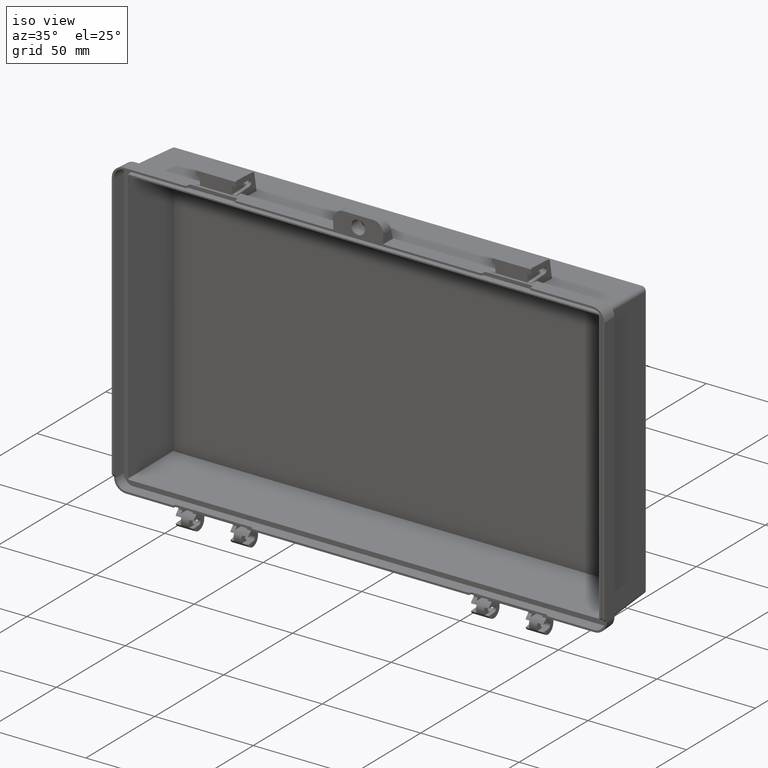
[diagram: clean part render]
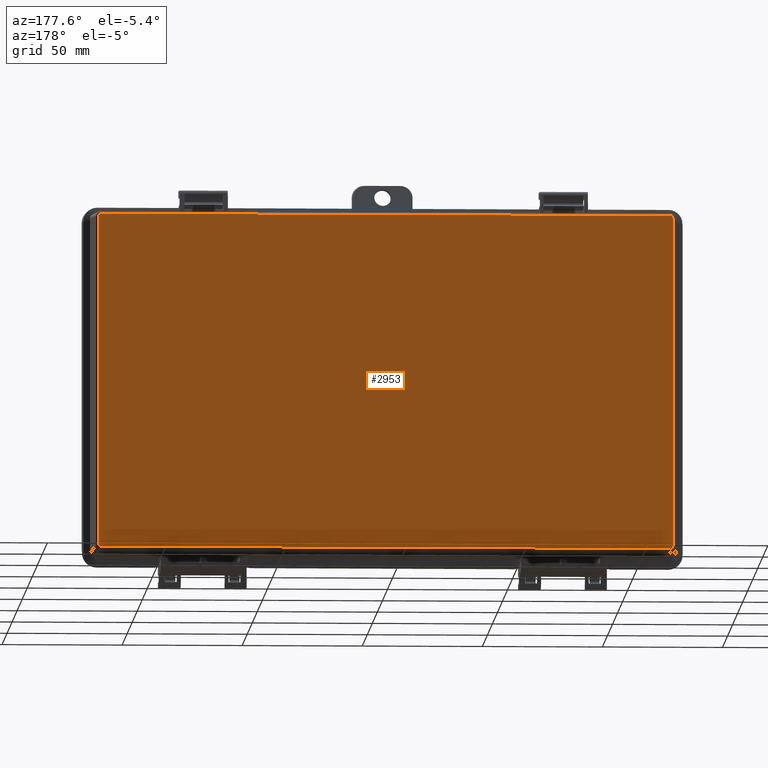
[diagram: tour spotlight — one face highlighted and labeled with its STEP entity id]
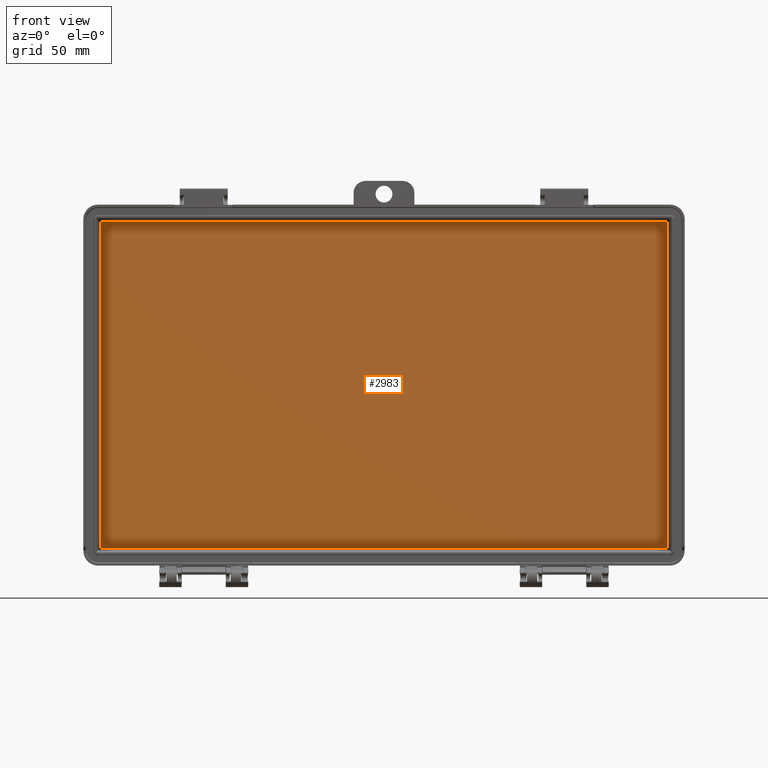
[diagram: tour spotlight — one face highlighted and labeled with its STEP entity id]
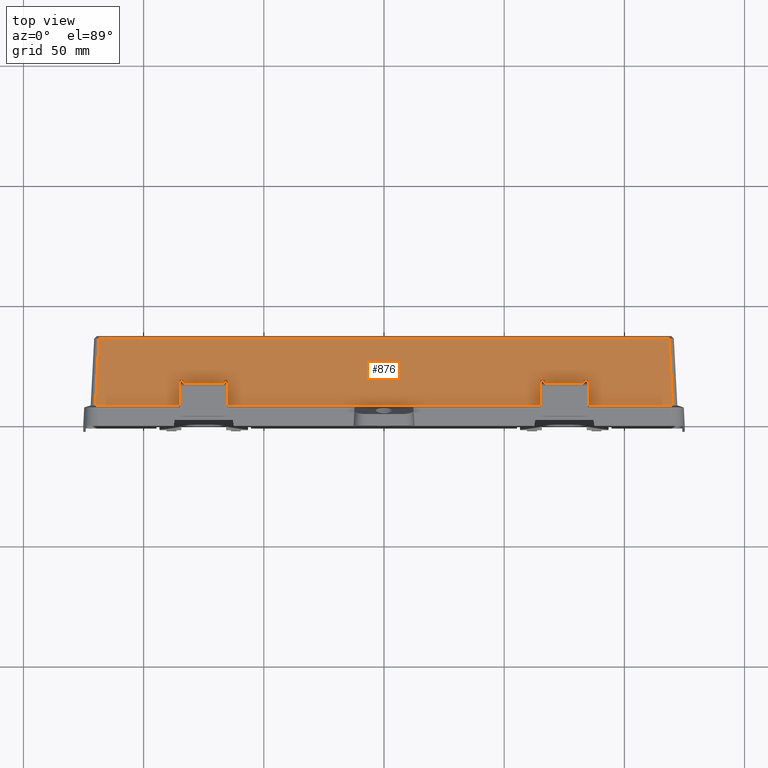
[diagram: tour spotlight — one face highlighted and labeled with its STEP entity id]
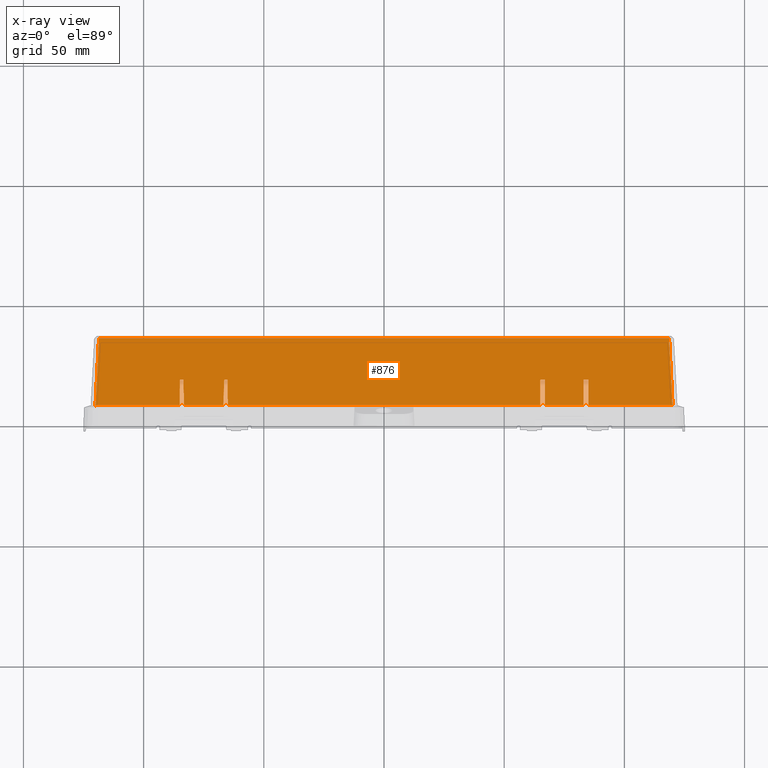
[diagram: x-ray of the same camera — body ghosted, this tour face saturated]
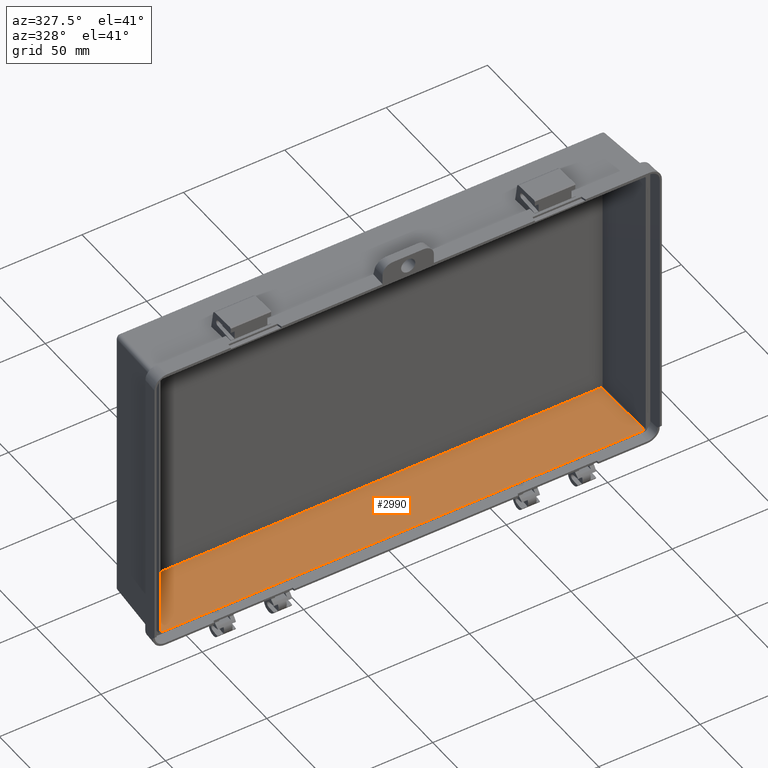
[diagram: tour spotlight — one face highlighted and labeled with its STEP entity id]
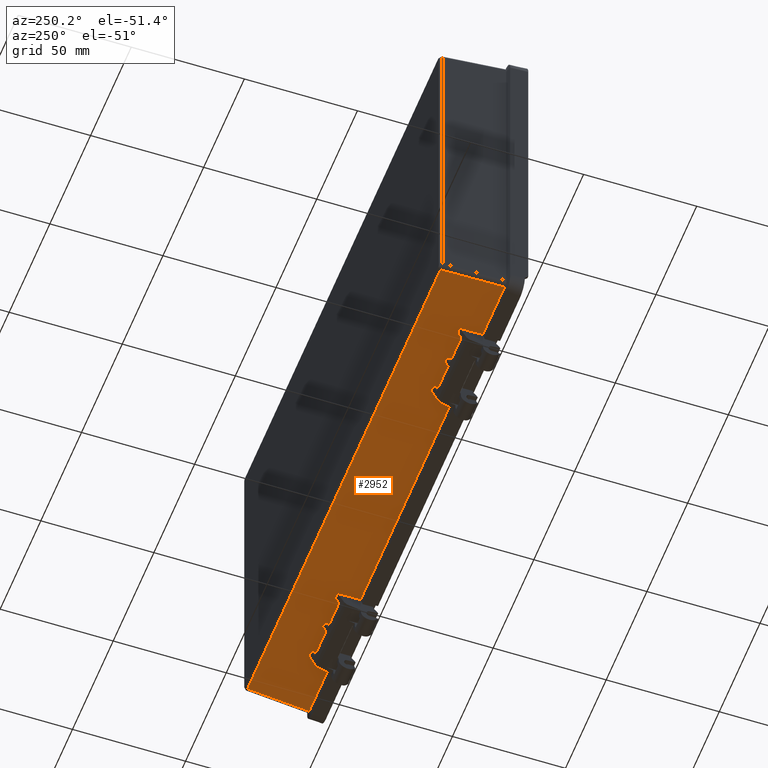
[diagram: tour spotlight — one face highlighted and labeled with its STEP entity id]
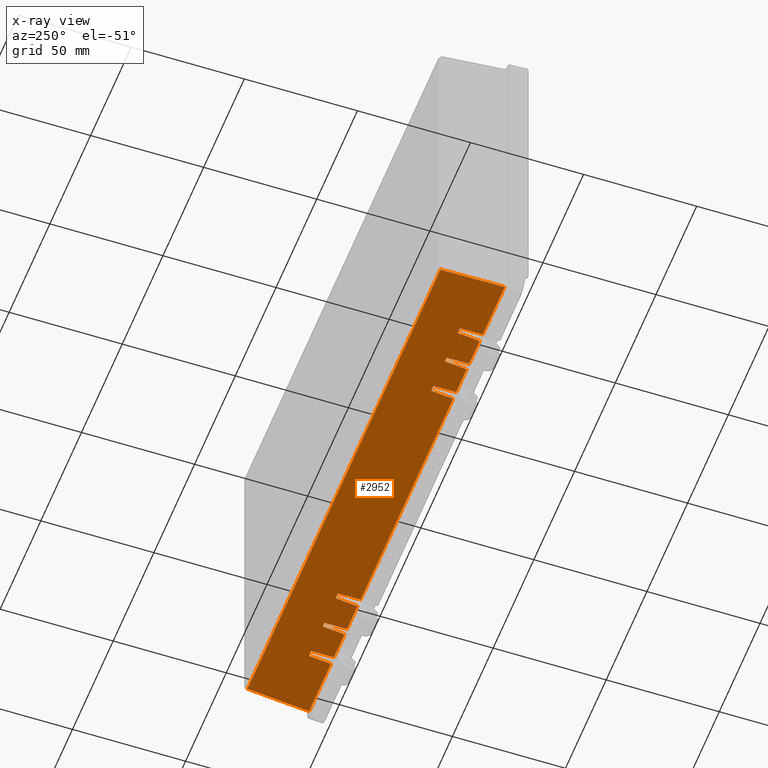
[diagram: x-ray of the same camera — body ghosted, this tour face saturated]
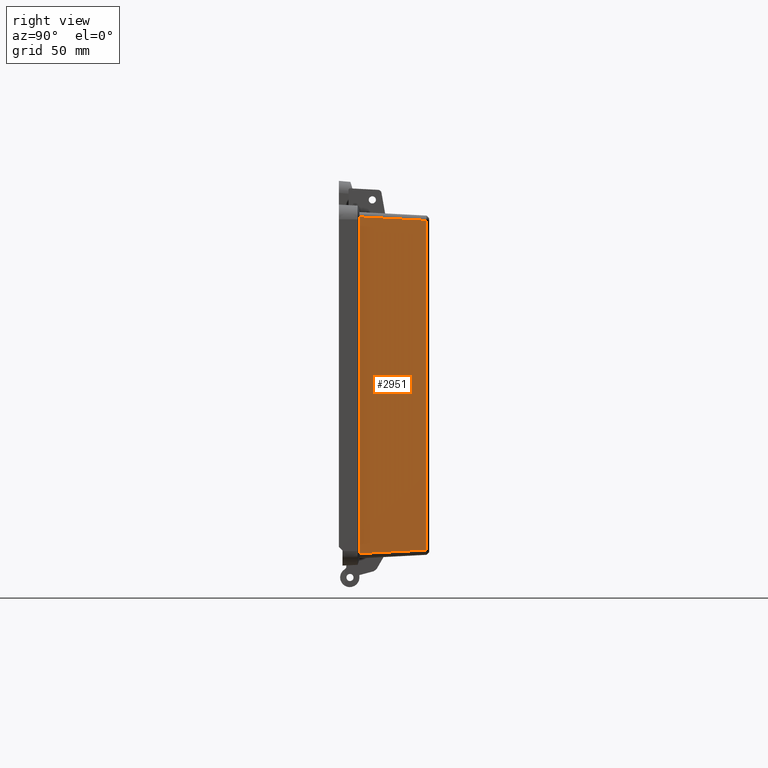
[diagram: tour spotlight — one face highlighted and labeled with its STEP entity id]
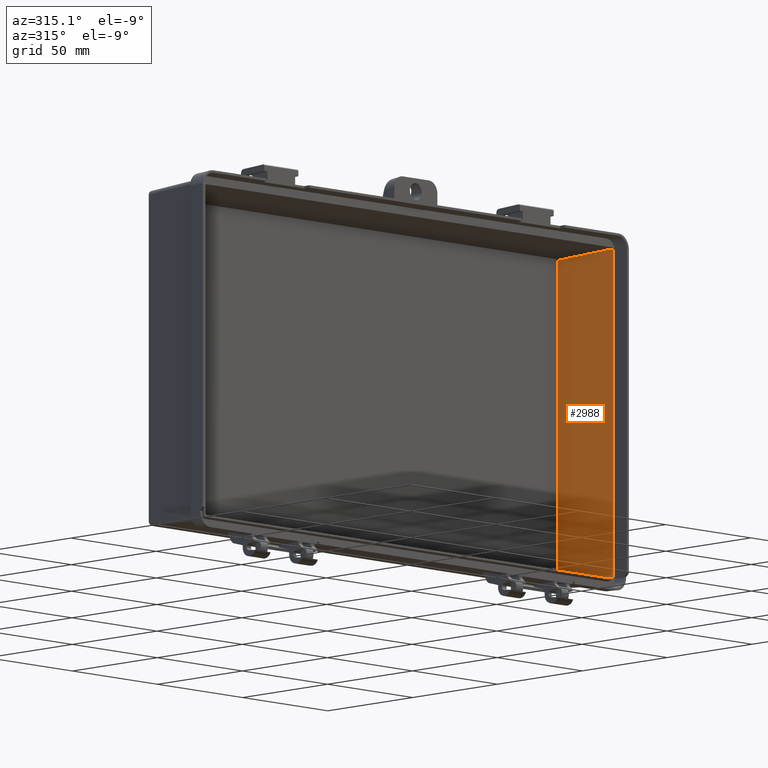
[diagram: tour spotlight — one face highlighted and labeled with its STEP entity id]
A machine part: a face-by-face anatomy tour. The part has 300 B-rep faces; the first image is the clean iso view, then the 7 largest visible faces are spotlighted one at a time (largest first), each with its STEP entity span.

Face 1 — auxiliary view, entity #2953. In plain terms, the highlighted planar face has unit normal (0, 1, 0).
Definition (entity closure, byte-faithful):
#147 = EDGE_LOOP ( 'NONE', ( #673, #713, #779, #829, #787, #663, #634, #781 ) ) ;
#402 = CARTESIAN_POINT ( 'NONE',  ( -119.5063782904332800, 35.00000000000000000, 68.56442547833880500 ) ) ;
#410 = CARTESIAN_POINT ( 'NONE',  ( -118.5644254783387800, 35.00000000000000000, -69.50637829043330400 ) ) ;
#445 = VERTEX_POINT ( 'NONE', #3885 ) ;
#448 = VERTEX_POINT ( 'NONE', #3888 ) ;
#466 = VERTEX_POINT ( 'NONE', #3838 ) ;
#485 = VERTEX_POINT ( 'NONE', #3866 ) ;
#490 = VERTEX_POINT ( 'NONE', #3871 ) ;
#495 = VERTEX_POINT ( 'NONE', #3900 ) ;
#555 = VERTEX_POINT ( 'NONE', #410 ) ;
#581 = VERTEX_POINT ( 'NONE', #402 ) ;
#634 = ORIENTED_EDGE ( 'NONE', *, *, #3684, .T. ) ;
#663 = ORIENTED_EDGE ( 'NONE', *, *, #3688, .T. ) ;
#673 = ORIENTED_EDGE ( 'NONE', *, *, #13438, .T. ) ;
#713 = ORIENTED_EDGE ( 'NONE', *, *, #13454, .T. ) ;
#779 = ORIENTED_EDGE ( 'NONE', *, *, #13437, .T. ) ;
#781 = ORIENTED_EDGE ( 'NONE', *, *, #3668, .T. ) ;
#787 = ORIENTED_EDGE ( 'NONE', *, *, #13426, .T. ) ;
#829 = ORIENTED_EDGE ( 'NONE', *, *, #13434, .T. ) ;
#2953 = ADVANCED_FACE ( 'NONE', ( #4601 ), #5448, .T. ) ;
#3503 = B_SPLINE_CURVE_WITH_KNOTS ( 'NONE', 3,
 ( #7696, #7697, #7698, #7699, #7700, #7701 ),
 .UNSPECIFIED., .F., .F.,
 ( 4, 2, 4 ),
 ( 0.0000000000000000000, 0.5000000000000000000, 1.000000000000000000 ),
 .UNSPECIFIED. ) ;
#3567 = B_SPLINE_CURVE_WITH_KNOTS ( 'NONE', 3,
 ( #8453, #8454, #8455, #8456, #8457, #8458 ),
 .UNSPECIFIED., .F., .F.,
 ( 4, 2, 4 ),
 ( 0.0000000000000000000, 0.5000000000000000000, 1.000000000000000000 ),
 .UNSPECIFIED. ) ;
#3569 = B_SPLINE_CURVE_WITH_KNOTS ( 'NONE', 3,
 ( #8492, #8493, #8494, #8495, #8496, #8497 ),
 .UNSPECIFIED., .F., .F.,
 ( 4, 2, 4 ),
 ( 0.0000000000000000000, 0.5000000000000000000, 1.000000000000000000 ),
 .UNSPECIFIED. ) ;
#3570 = B_SPLINE_CURVE_WITH_KNOTS ( 'NONE', 3,
 ( #8498, #8499, #8500, #8501, #8502, #8503 ),
 .UNSPECIFIED., .F., .F.,
 ( 4, 2, 4 ),
 ( 0.0000000000000000000, 0.5000000000000000000, 1.000000000000000000 ),
 .UNSPECIFIED. ) ;
#3668 = EDGE_CURVE ( 'NONE', #485, #445, #6229, .T. ) ;
#3684 = EDGE_CURVE ( 'NONE', #581, #485, #3503, .T. ) ;
#3688 = EDGE_CURVE ( 'NONE', #466, #581, #6244, .T. ) ;
#3838 = CARTESIAN_POINT ( 'NONE',  ( -119.5063782904333200, 35.00000000000000000, -68.56442547833877700 ) ) ;
#3866 = CARTESIAN_POINT ( 'NONE',  ( -118.5644254783387300, 35.00000000000000000, 69.50637829043333200 ) ) ;
#3871 = CARTESIAN_POINT ( 'NONE',  ( 118.5644254783387800, 35.00000000000000000, -69.50637829043333200 ) ) ;
#3885 = CARTESIAN_POINT ( 'NONE',  ( 118.5644254783387500, 35.00000000000000000, 69.50637829043330400 ) ) ;
#3888 = CARTESIAN_POINT ( 'NONE',  ( 119.5063782904333000, 35.00000000000000000, 68.56442547833877700 ) ) ;
#3900 = CARTESIAN_POINT ( 'NONE',  ( 119.5063782904333000, 35.00000000000000000, -68.56442547833879100 ) ) ;
#4601 = FACE_OUTER_BOUND ( 'NONE', #147, .T. ) ;
#5448 = PLANE ( 'NONE',  #11835 ) ;
#5449 = CARTESIAN_POINT ( 'NONE',  ( -119.0000000000000100, 35.00000000000000000, -68.99999999999998600 ) ) ;
#5450 = DIRECTION ( 'NONE',  ( 0.0000000000000000000, 1.000000000000000000, 0.0000000000000000000 ) ) ;
#5451 = DIRECTION ( 'NONE',  ( 0.0000000000000000000, -0.0000000000000000000, 1.000000000000000000 ) ) ;
#6229 = LINE ( 'NONE', #7634, #13298 ) ;
#6244 = LINE ( 'NONE', #7717, #13317 ) ;
#7634 = CARTESIAN_POINT ( 'NONE',  ( 118.5091192209240900, 35.00000000000000000, 69.50637829043330400 ) ) ;
#7635 = DIRECTION ( 'NONE',  ( 1.000000000000000000, 0.0000000000000000000, -1.137523590804464100E-016 ) ) ;
#7696 = CARTESIAN_POINT ( 'NONE',  ( -119.5063782904332800, 35.00000000000000000, 68.56442547833880500 ) ) ;
#7697 = CARTESIAN_POINT ( 'NONE',  ( -119.5125375745939800, 35.00000000000000700, 68.81644685994811500 ) ) ;
#7698 = CARTESIAN_POINT ( 'NONE',  ( -119.4199514358815200, 35.00000000000000000, 69.03822274734700700 ) ) ;
#7699 = CARTESIAN_POINT ( 'NONE',  ( -119.0384209904106600, 35.00000000000000000, 69.42014967894539300 ) ) ;
#7700 = CARTESIAN_POINT ( 'NONE',  ( -118.8168340788082300, 35.00000000000000000, 69.51254703804112000 ) ) ;
#7701 = CARTESIAN_POINT ( 'NONE',  ( -118.5644254783387300, 35.00000000000000000, 69.50637829043333200 ) ) ;
#7717 = CARTESIAN_POINT ( 'NONE',  ( -119.5063782904332800, 35.00000000000000000, 68.50911922092416300 ) ) ;
#7718 = DIRECTION ( 'NONE',  ( 2.891205793294678300E-016, 0.0000000000000000000, 1.000000000000000000 ) ) ;
#8453 = CARTESIAN_POINT ( 'NONE',  ( -118.5644254783387800, 35.00000000000000000, -69.50637829043330400 ) ) ;
#8454 = CARTESIAN_POINT ( 'NONE',  ( -118.8164468599515500, 35.00000000000000700, -69.51253757459413400 ) ) ;
#8455 = CARTESIAN_POINT ( 'NONE',  ( -119.0382227473470100, 35.00000000000000000, -69.41995143588506800 ) ) ;
#8456 = CARTESIAN_POINT ( 'NONE',  ( -119.4201496789452500, 35.00000000000000000, -69.03842099040718900 ) ) ;
#8457 = CARTESIAN_POINT ( 'NONE',  ( -119.5125470380409800, 35.00000000000000000, -68.81683407880473200 ) ) ;
#8458 = CARTESIAN_POINT ( 'NONE',  ( -119.5063782904333200, 35.00000000000000000, -68.56442547833877700 ) ) ;
#8486 = CARTESIAN_POINT ( 'NONE',  ( -118.5091192209241600, 35.00000000000000000, -69.50637829043330400 ) ) ;
#8487 = DIRECTION ( 'NONE',  ( -1.000000000000000000, 0.0000000000000000000, 1.137523590804463800E-016 ) ) ;
#8492 = CARTESIAN_POINT ( 'NONE',  ( 119.5063782904333000, 35.00000000000000000, -68.56442547833879100 ) ) ;
#8493 = CARTESIAN_POINT ( 'NONE',  ( 119.5125375745939900, 35.00000000000000700, -68.81644685994811500 ) ) ;
#8494 = CARTESIAN_POINT ( 'NONE',  ( 119.4199514358815200, 35.00000000000000000, -69.03822274734695000 ) ) ;
#8495 = CARTESIAN_POINT ( 'NONE',  ( 119.0384209904106600, 35.00000000000000000, -69.42014967894537800 ) ) ;
#8496 = CARTESIAN_POINT ( 'NONE',  ( 118.8168340788082300, 35.00000000000000000, -69.51254703804107700 ) ) ;
#8497 = CARTESIAN_POINT ( 'NONE',  ( 118.5644254783387800, 35.00000000000000000, -69.50637829043333200 ) ) ;
#8498 = CARTESIAN_POINT ( 'NONE',  ( 118.5644254783387500, 35.00000000000000000, 69.50637829043330400 ) ) ;
#8499 = CARTESIAN_POINT ( 'NONE',  ( 118.8164468599551200, 35.00000000000000700, 69.51253757459420500 ) ) ;
#8500 = CARTESIAN_POINT ( 'NONE',  ( 119.0382227473470600, 35.00000000000000000, 69.41995143588859200 ) ) ;
#8501 = CARTESIAN_POINT ( 'NONE',  ( 119.4201496789450900, 35.00000000000000000, 69.03842099040366500 ) ) ;
#8502 = CARTESIAN_POINT ( 'NONE',  ( 119.5125470380408800, 35.00000000000000000, 68.81683407880120700 ) ) ;
#8503 = CARTESIAN_POINT ( 'NONE',  ( 119.5063782904333000, 35.00000000000000000, 68.56442547833877700 ) ) ;
#8548 = CARTESIAN_POINT ( 'NONE',  ( 119.5063782904333000, 35.00000000000000000, -68.50911922092419100 ) ) ;
#8549 = DIRECTION ( 'NONE',  ( -9.637352644315594000E-017, 0.0000000000000000000, -1.000000000000000000 ) ) ;
#8839 = VECTOR ( 'NONE', #8487, 1000.000000000000000 ) ;
#8855 = VECTOR ( 'NONE', #8549, 1000.000000000000000 ) ;
#8960 = LINE ( 'NONE', #8486, #8839 ) ;
#8976 = LINE ( 'NONE', #8548, #8855 ) ;
#11835 = AXIS2_PLACEMENT_3D ( 'NONE', #5449, #5450, #5451 ) ;
#13298 = VECTOR ( 'NONE', #7635, 1000.000000000000000 ) ;
#13317 = VECTOR ( 'NONE', #7718, 1000.000000000000000 ) ;
#13426 = EDGE_CURVE ( 'NONE', #555, #466, #3567, .T. ) ;
#13434 = EDGE_CURVE ( 'NONE', #490, #555, #8960, .T. ) ;
#13437 = EDGE_CURVE ( 'NONE', #495, #490, #3569, .T. ) ;
#13438 = EDGE_CURVE ( 'NONE', #445, #448, #3570, .T. ) ;
#13454 = EDGE_CURVE ( 'NONE', #448, #495, #8976, .T. ) ;

Face 2 — front view, entity #2983. In plain terms, the highlighted planar face has unit normal (0, 1, 0).
Definition (entity closure, byte-faithful):
#28 =( BOUNDED_CURVE ( )  B_SPLINE_CURVE ( 3, ( #8257, #8258, #8259, #8260 ),
 .UNSPECIFIED., .F., .T. ) 
 B_SPLINE_CURVE_WITH_KNOTS ( ( 4, 4 ),
 ( 2.357564018062631800, 3.925621289116898900 ),
 .UNSPECIFIED. ) 
 CURVE ( )  GEOMETRIC_REPRESENTATION_ITEM ( )  RATIONAL_B_SPLINE_CURVE ( ( 1.000000000000000000, 0.8053830134673216600, 0.8053830134673216600, 1.000000000000000000 ) ) 
 REPRESENTATION_ITEM ( '' )  );
#63 =( BOUNDED_CURVE ( )  B_SPLINE_CURVE ( 3, ( #7473, #7474, #7475, #7476 ),
 .UNSPECIFIED., .F., .T. ) 
 B_SPLINE_CURVE_WITH_KNOTS ( ( 4, 4 ),
 ( 2.357564018062687300, 3.925621289116843400 ),
 .UNSPECIFIED. ) 
 CURVE ( )  GEOMETRIC_REPRESENTATION_ITEM ( )  RATIONAL_B_SPLINE_CURVE ( ( 1.000000000000000000, 0.8053830134673477500, 0.8053830134673477500, 1.000000000000000000 ) ) 
 REPRESENTATION_ITEM ( '' )  );
#80 =( BOUNDED_CURVE ( )  B_SPLINE_CURVE ( 3, ( #7549, #7550, #7551, #7552 ),
 .UNSPECIFIED., .F., .T. ) 
 B_SPLINE_CURVE_WITH_KNOTS ( ( 4, 4 ),
 ( 2.357564018062742800, 3.925621289116843400 ),
 .UNSPECIFIED. ) 
 CURVE ( )  GEOMETRIC_REPRESENTATION_ITEM ( )  RATIONAL_B_SPLINE_CURVE ( ( 1.000000000000000000, 0.8053830134673609600, 0.8053830134673609600, 1.000000000000000000 ) ) 
 REPRESENTATION_ITEM ( '' )  );
#96 =( BOUNDED_CURVE ( )  B_SPLINE_CURVE ( 3, ( #7490, #7491, #7492, #7493 ),
 .UNSPECIFIED., .F., .T. ) 
 B_SPLINE_CURVE_WITH_KNOTS ( ( 4, 4 ),
 ( 2.357564018062742800, 3.925621289116981900 ),
 .UNSPECIFIED. ) 
 CURVE ( )  GEOMETRIC_REPRESENTATION_ITEM ( )  RATIONAL_B_SPLINE_CURVE ( ( 1.000000000000000000, 0.8053830134673282100, 0.8053830134673282100, 1.000000000000000000 ) ) 
 REPRESENTATION_ITEM ( '' )  );
#302 = CARTESIAN_POINT ( 'NONE',  ( -117.5580076292854700, 32.30000000000000400, -68.05732239666282600 ) ) ;
#379 = CARTESIAN_POINT ( 'NONE',  ( 118.0573223966627700, 32.30000000000000400, -67.55800762928554100 ) ) ;
#600 = VERTEX_POINT ( 'NONE', #379 ) ;
#602 = VERTEX_POINT ( 'NONE', #302 ) ;
#614 = ORIENTED_EDGE ( 'NONE', *, *, #3685, .T. ) ;
#617 = ORIENTED_EDGE ( 'NONE', *, *, #3635, .T. ) ;
#675 = ORIENTED_EDGE ( 'NONE', *, *, #3785, .T. ) ;
#700 = ORIENTED_EDGE ( 'NONE', *, *, #3632, .T. ) ;
#750 = ORIENTED_EDGE ( 'NONE', *, *, #3800, .T. ) ;
#792 = ORIENTED_EDGE ( 'NONE', *, *, #3622, .T. ) ;
#802 = ORIENTED_EDGE ( 'NONE', *, *, #3801, .T. ) ;
#851 = ORIENTED_EDGE ( 'NONE', *, *, #3648, .T. ) ;
#930 = VERTEX_POINT ( 'NONE', #6463 ) ;
#975 = VERTEX_POINT ( 'NONE', #6617 ) ;
#997 = VERTEX_POINT ( 'NONE', #6762 ) ;
#1043 = VERTEX_POINT ( 'NONE', #6693 ) ;
#1077 = VERTEX_POINT ( 'NONE', #6712 ) ;
#1168 = VERTEX_POINT ( 'NONE', #6620 ) ;
#2983 = ADVANCED_FACE ( 'NONE', ( #5828 ), #12150, .F. ) ;
#3622 = EDGE_CURVE ( 'NONE', #600, #1043, #6189, .T. ) ;
#3632 = EDGE_CURVE ( 'NONE', #997, #602, #63, .T. ) ;
#3635 = EDGE_CURVE ( 'NONE', #1043, #975, #96, .T. ) ;
#3648 = EDGE_CURVE ( 'NONE', #1077, #1168, #80, .T. ) ;
#3685 = EDGE_CURVE ( 'NONE', #1168, #997, #6242, .T. ) ;
#3785 = EDGE_CURVE ( 'NONE', #602, #930, #6358, .T. ) ;
#3800 = EDGE_CURVE ( 'NONE', #975, #1077, #6370, .T. ) ;
#3801 = EDGE_CURVE ( 'NONE', #930, #600, #28, .T. ) ;
#5828 = FACE_OUTER_BOUND ( 'NONE', #13816, .T. ) ;
#6189 = LINE ( 'NONE', #7444, #13245 ) ;
#6242 = LINE ( 'NONE', #7702, #13314 ) ;
#6358 = LINE ( 'NONE', #8199, #8774 ) ;
#6370 = LINE ( 'NONE', #8255, #8788 ) ;
#6463 = CARTESIAN_POINT ( 'NONE',  ( 117.5580076292854400, 32.30000000000000400, -68.05732239666282600 ) ) ;
#6617 = CARTESIAN_POINT ( 'NONE',  ( 117.5580076292854600, 32.30000000000000400, 68.05732239666282600 ) ) ;
#6620 = CARTESIAN_POINT ( 'NONE',  ( -118.0573223966627700, 32.30000000000000400, 67.55800762928554100 ) ) ;
#6693 = CARTESIAN_POINT ( 'NONE',  ( 118.0573223966627700, 32.30000000000000400, 67.55800762928555500 ) ) ;
#6712 = CARTESIAN_POINT ( 'NONE',  ( -117.5580076292854700, 32.30000000000000400, 68.05732239666282600 ) ) ;
#6762 = CARTESIAN_POINT ( 'NONE',  ( -118.0573223966627700, 32.30000000000000400, -67.55800762928551300 ) ) ;
#7444 = CARTESIAN_POINT ( 'NONE',  ( 118.0573223966627700, 32.30000000000000400, 69.51949943865969300 ) ) ;
#7445 = DIRECTION ( 'NONE',  ( 0.0000000000000000000, 0.0000000000000000000, 1.000000000000000000 ) ) ;
#7473 = CARTESIAN_POINT ( 'NONE',  ( -118.0573223966627700, 32.30000000000000400, -67.55800762928551300 ) ) ;
#7474 = CARTESIAN_POINT ( 'NONE',  ( -118.0573223966627800, 32.30000000000000400, -67.85066512551442500 ) ) ;
#7475 = CARTESIAN_POINT ( 'NONE',  ( -117.8506651255143800, 32.30000000000000400, -68.05732239666282600 ) ) ;
#7476 = CARTESIAN_POINT ( 'NONE',  ( -117.5580076292854700, 32.30000000000000400, -68.05732239666282600 ) ) ;
#7490 = CARTESIAN_POINT ( 'NONE',  ( 118.0573223966627700, 32.30000000000000400, 67.55800762928555500 ) ) ;
#7491 = CARTESIAN_POINT ( 'NONE',  ( 118.0573223966628300, 32.30000000000000400, 67.85066512551449600 ) ) ;
#7492 = CARTESIAN_POINT ( 'NONE',  ( 117.8506651255143800, 32.30000000000000400, 68.05732239666288300 ) ) ;
#7493 = CARTESIAN_POINT ( 'NONE',  ( 117.5580076292854600, 32.30000000000000400, 68.05732239666282600 ) ) ;
#7549 = CARTESIAN_POINT ( 'NONE',  ( -117.5580076292854700, 32.30000000000000400, 68.05732239666282600 ) ) ;
#7550 = CARTESIAN_POINT ( 'NONE',  ( -117.8506651255143700, 32.30000000000000400, 68.05732239666282600 ) ) ;
#7551 = CARTESIAN_POINT ( 'NONE',  ( -118.0573223966627700, 32.30000000000000400, 67.85066512551443900 ) ) ;
#7552 = CARTESIAN_POINT ( 'NONE',  ( -118.0573223966627700, 32.30000000000000400, 67.55800762928554100 ) ) ;
#7702 = CARTESIAN_POINT ( 'NONE',  ( -118.0573223966627700, 32.30000000000000400, 69.51949943865969300 ) ) ;
#7703 = DIRECTION ( 'NONE',  ( 0.0000000000000000000, 0.0000000000000000000, -1.000000000000000000 ) ) ;
#8199 = CARTESIAN_POINT ( 'NONE',  ( -119.5194994386596200, 32.30000000000000400, -68.05732239666282600 ) ) ;
#8200 = DIRECTION ( 'NONE',  ( 1.000000000000000000, -0.0000000000000000000, 0.0000000000000000000 ) ) ;
#8255 = CARTESIAN_POINT ( 'NONE',  ( -119.5194994386596200, 32.30000000000000400, 68.05732239666282600 ) ) ;
#8256 = DIRECTION ( 'NONE',  ( -1.000000000000000000, 0.0000000000000000000, 0.0000000000000000000 ) ) ;
#8257 = CARTESIAN_POINT ( 'NONE',  ( 117.5580076292854400, 32.30000000000000400, -68.05732239666282600 ) ) ;
#8258 = CARTESIAN_POINT ( 'NONE',  ( 117.8506651255143700, 32.30000000000000400, -68.05732239666288300 ) ) ;
#8259 = CARTESIAN_POINT ( 'NONE',  ( 118.0573223966628000, 32.30000000000000400, -67.85066512551448200 ) ) ;
#8260 = CARTESIAN_POINT ( 'NONE',  ( 118.0573223966627700, 32.30000000000000400, -67.55800762928554100 ) ) ;
#8774 = VECTOR ( 'NONE', #8200, 1000.000000000000000 ) ;
#8788 = VECTOR ( 'NONE', #8256, 1000.000000000000000 ) ;
#11893 = AXIS2_PLACEMENT_3D ( 'NONE', #12151, #12152, #12153 ) ;
#12150 = PLANE ( 'NONE',  #11893 ) ;
#12151 = CARTESIAN_POINT ( 'NONE',  ( -119.0000000000000100, 32.30000000000000400, -68.99999999999998600 ) ) ;
#12152 = DIRECTION ( 'NONE',  ( 0.0000000000000000000, 1.000000000000000000, 0.0000000000000000000 ) ) ;
#12153 = DIRECTION ( 'NONE',  ( 0.0000000000000000000, -0.0000000000000000000, 1.000000000000000000 ) ) ;
#13245 = VECTOR ( 'NONE', #7445, 1000.000000000000000 ) ;
#13314 = VECTOR ( 'NONE', #7703, 1000.000000000000000 ) ;
#13816 = EDGE_LOOP ( 'NONE', ( #792, #617, #750, #851, #614, #700, #675, #802 ) ) ;

Face 3 — top view, entity #876. An x-ray twin of the same camera follows (body ghosted, this face saturated) — the face is partly hidden behind the body. In plain terms, the highlighted planar face has unit normal (0, 0.0523, 0.9986).
Definition (entity closure, byte-faithful):
#103 = VECTOR ( 'NONE', #10610, 1000.000000000000100 ) ;
#106 = VECTOR ( 'NONE', #10626, 1000.000000000000000 ) ;
#111 = VECTOR ( 'NONE', #10612, 1000.000000000000000 ) ;
#112 = VECTOR ( 'NONE', #10600, 1000.000000000000200 ) ;
#114 = VECTOR ( 'NONE', #10618, 1000.000000000000000 ) ;
#116 = VECTOR ( 'NONE', #10616, 999.9999999999998900 ) ;
#117 = VECTOR ( 'NONE', #10628, 1000.000000000000000 ) ;
#118 = VECTOR ( 'NONE', #10608, 1000.000000000000100 ) ;
#126 = VECTOR ( 'NONE', #10706, 1000.000000000000000 ) ;
#130 = VECTOR ( 'NONE', #10728, 1000.000000000000000 ) ;
#148 = EDGE_LOOP ( 'NONE', ( #2338, #2337, #2361, #2307, #2294, #2301, #2324, #2313, #2310, #2360, #2299, #2315, #2355, #2283, #2269, #2365, #2271, #2345, #2344, #2267, #2364, #2311 ) ) ;
#345 = DIRECTION ( 'NONE',  ( 0.0000000000000000000, -0.9986295347545739400, 0.05233595624294395300 ) ) ;
#351 = PLANE ( 'NONE',  #3952 ) ;
#383 = DIRECTION ( 'NONE',  ( 1.135964654257414300E-016, 0.05233595624294395300, 0.9986295347545739400 ) ) ;
#397 = CARTESIAN_POINT ( 'NONE',  ( -121.9999999999999600, 6.500000000000000000, 72.00000000000002800 ) ) ;
#876 = ADVANCED_FACE ( 'NONE', ( #9455 ), #351, .T. ) ;
#891 = VERTEX_POINT ( 'NONE', #6520 ) ;
#913 = VERTEX_POINT ( 'NONE', #6441 ) ;
#916 = VERTEX_POINT ( 'NONE', #6511 ) ;
#924 = VERTEX_POINT ( 'NONE', #6420 ) ;
#940 = VERTEX_POINT ( 'NONE', #6602 ) ;
#949 = VERTEX_POINT ( 'NONE', #6699 ) ;
#1023 = VERTEX_POINT ( 'NONE', #6573 ) ;
#1032 = VERTEX_POINT ( 'NONE', #6468 ) ;
#1044 = VERTEX_POINT ( 'NONE', #6701 ) ;
#1046 = VERTEX_POINT ( 'NONE', #6718 ) ;
#1060 = VERTEX_POINT ( 'NONE', #6569 ) ;
#1064 = VERTEX_POINT ( 'NONE', #6550 ) ;
#1120 = VERTEX_POINT ( 'NONE', #6790 ) ;
#1128 = VERTEX_POINT ( 'NONE', #6605 ) ;
#1158 = VERTEX_POINT ( 'NONE', #6654 ) ;
#1173 = VERTEX_POINT ( 'NONE', #6748 ) ;
#1278 = VERTEX_POINT ( 'NONE', #6482 ) ;
#1280 = VERTEX_POINT ( 'NONE', #6485 ) ;
#1294 = VERTEX_POINT ( 'NONE', #6785 ) ;
#1296 = VERTEX_POINT ( 'NONE', #6786 ) ;
#2267 = ORIENTED_EDGE ( 'NONE', *, *, #2772, .T. ) ;
#2269 = ORIENTED_EDGE ( 'NONE', *, *, #2728, .F. ) ;
#2271 = ORIENTED_EDGE ( 'NONE', *, *, #2779, .F. ) ;
#2283 = ORIENTED_EDGE ( 'NONE', *, *, #2799, .F. ) ;
#2294 = ORIENTED_EDGE ( 'NONE', *, *, #2742, .T. ) ;
#2299 = ORIENTED_EDGE ( 'NONE', *, *, #2739, .F. ) ;
#2301 = ORIENTED_EDGE ( 'NONE', *, *, #2789, .T. ) ;
#2307 = ORIENTED_EDGE ( 'NONE', *, *, #2743, .F. ) ;
#2310 = ORIENTED_EDGE ( 'NONE', *, *, #2747, .T. ) ;
#2311 = ORIENTED_EDGE ( 'NONE', *, *, #2748, .F. ) ;
#2313 = ORIENTED_EDGE ( 'NONE', *, *, #2532, .F. ) ;
#2315 = ORIENTED_EDGE ( 'NONE', *, *, #2788, .T. ) ;
#2324 = ORIENTED_EDGE ( 'NONE', *, *, #2773, .F. ) ;
#2337 = ORIENTED_EDGE ( 'NONE', *, *, #2791, .T. ) ;
#2338 = ORIENTED_EDGE ( 'NONE', *, *, #2738, .T. ) ;
#2344 = ORIENTED_EDGE ( 'NONE', *, *, #2798, .T. ) ;
#2345 = ORIENTED_EDGE ( 'NONE', *, *, #2735, .T. ) ;
#2355 = ORIENTED_EDGE ( 'NONE', *, *, #2729, .T. ) ;
#2360 = ORIENTED_EDGE ( 'NONE', *, *, #2740, .F. ) ;
#2361 = ORIENTED_EDGE ( 'NONE', *, *, #2771, .F. ) ;
#2364 = ORIENTED_EDGE ( 'NONE', *, *, #2757, .F. ) ;
#2365 = ORIENTED_EDGE ( 'NONE', *, *, #2780, .F. ) ;
#2532 = EDGE_CURVE ( 'NONE', #13533, #13881, #9574, .T. ) ;
#2728 = EDGE_CURVE ( 'NONE', #940, #913, #9755, .T. ) ;
#2729 = EDGE_CURVE ( 'NONE', #891, #1173, #9756, .T. ) ;
#2735 = EDGE_CURVE ( 'NONE', #1120, #1046, #9762, .T. ) ;
#2738 = EDGE_CURVE ( 'NONE', #1060, #1294, #9764, .T. ) ;
#2739 = EDGE_CURVE ( 'NONE', #949, #1044, #9765, .T. ) ;
#2740 = EDGE_CURVE ( 'NONE', #1044, #1023, #9766, .T. ) ;
#2742 = EDGE_CURVE ( 'NONE', #1280, #1296, #9768, .T. ) ;
#2743 = EDGE_CURVE ( 'NONE', #1280, #1032, #9769, .T. ) ;
#2747 = EDGE_CURVE ( 'NONE', #13533, #1023, #9773, .T. ) ;
#2748 = EDGE_CURVE ( 'NONE', #1060, #916, #9774, .T. ) ;
#2757 = EDGE_CURVE ( 'NONE', #916, #1158, #3469, .T. ) ;
#2771 = EDGE_CURVE ( 'NONE', #1032, #924, #9791, .T. ) ;
#2772 = EDGE_CURVE ( 'NONE', #1064, #1158, #9792, .T. ) ;
#2773 = EDGE_CURVE ( 'NONE', #13881, #1278, #9793, .T. ) ;
#2779 = EDGE_CURVE ( 'NONE', #1120, #1128, #3414, .T. ) ;
#2780 = EDGE_CURVE ( 'NONE', #1128, #940, #9799, .T. ) ;
#2788 = EDGE_CURVE ( 'NONE', #949, #891, #9806, .T. ) ;
#2789 = EDGE_CURVE ( 'NONE', #1296, #1278, #9807, .T. ) ;
#2791 = EDGE_CURVE ( 'NONE', #1294, #924, #9809, .T. ) ;
#2798 = EDGE_CURVE ( 'NONE', #1046, #1064, #9816, .T. ) ;
#2799 = EDGE_CURVE ( 'NONE', #913, #1173, #9817, .T. ) ;
#3414 = B_SPLINE_CURVE_WITH_KNOTS ( 'NONE', 3,
 ( #10701, #10702, #10703, #10704 ),
 .UNSPECIFIED., .F., .F.,
 ( 4, 4 ),
 ( 0.002161897219912615300, 0.003184936942921133700 ),
 .UNSPECIFIED. ) ;
#3469 = B_SPLINE_CURVE_WITH_KNOTS ( 'NONE', 3,
 ( #10647, #10648, #10649, #10650 ),
 .UNSPECIFIED., .F., .F.,
 ( 4, 4 ),
 ( 1.982722126575820800E-007, 0.001023237995221147700 ),
 .UNSPECIFIED. ) ;
#3926 = VECTOR ( 'NONE', #10690, 1000.000000000000100 ) ;
#3934 = VECTOR ( 'NONE', #10688, 1000.000000000000200 ) ;
#3939 = VECTOR ( 'NONE', #10686, 999.9999999999998900 ) ;
#3952 = AXIS2_PLACEMENT_3D ( 'NONE', #397, #383, #345 ) ;
#3972 = VECTOR ( 'NONE', #10726, 1000.000000000000000 ) ;
#4137 = VECTOR ( 'NONE', #7039, 1000.000000000000000 ) ;
#4234 = VECTOR ( 'NONE', #10732, 1000.000000000000000 ) ;
#6420 = CARTESIAN_POINT ( 'NONE',  ( -83.53146232916923000, 16.71908986841871300, 71.46444019370234500 ) ) ;
#6441 = CARTESIAN_POINT ( 'NONE',  ( 85.00000000000000000, 16.71908986841871300, 71.46444019370234500 ) ) ;
#6468 = CARTESIAN_POINT ( 'NONE',  ( -83.16161082596519800, 6.127928545600725300, 72.01949943865966500 ) ) ;
#6482 = CARTESIAN_POINT ( 'NONE',  ( -65.06640622826770900, 16.71908986841871300, 71.46444019370234500 ) ) ;
#6485 = CARTESIAN_POINT ( 'NONE',  ( -66.83838917403478800, 6.127928545600725300, 72.01949943865966500 ) ) ;
#6511 = CARTESIAN_POINT ( 'NONE',  ( -119.0000000000000100, 6.127928545600718200, 72.01949943865969300 ) ) ;
#6520 = CARTESIAN_POINT ( 'NONE',  ( 82.99999999999998600, 6.127928545600725300, 72.01949943865966500 ) ) ;
#6550 = CARTESIAN_POINT ( 'NONE',  ( -118.5644254783387300, 33.94469374258540700, 70.56168454784794600 ) ) ;
#6569 = CARTESIAN_POINT ( 'NONE',  ( -84.97980672418241000, 6.127928545600715500, 72.01949943865970700 ) ) ;
#6573 = CARTESIAN_POINT ( 'NONE',  ( 64.99999999999998600, 16.71908986841871700, 71.46444019370233000 ) ) ;
#6602 = CARTESIAN_POINT ( 'NONE',  ( 85.00000000000000000, 6.127928545600724400, 72.01949943865967900 ) ) ;
#6605 = CARTESIAN_POINT ( 'NONE',  ( 119.0000000000000100, 6.127928545600722600, 72.01949943865967900 ) ) ;
#6654 = CARTESIAN_POINT ( 'NONE',  ( -120.0249936438931100, 6.075392933897688900, 72.02225271340233800 ) ) ;
#6699 = CARTESIAN_POINT ( 'NONE',  ( 66.99999999999998600, 6.127928545600725300, 72.01949943865966500 ) ) ;
#6701 = CARTESIAN_POINT ( 'NONE',  ( 66.99999999999998600, 16.71908986841871700, 71.46444019370234500 ) ) ;
#6718 = CARTESIAN_POINT ( 'NONE',  ( 118.5644254783387500, 33.94469374258541400, 70.56168454784791800 ) ) ;
#6748 = CARTESIAN_POINT ( 'NONE',  ( 82.99999999999998600, 16.71908986841871700, 71.46444019370234500 ) ) ;
#6785 = CARTESIAN_POINT ( 'NONE',  ( -84.93359377173230500, 16.71908986841871300, 71.46444019370234500 ) ) ;
#6786 = CARTESIAN_POINT ( 'NONE',  ( -66.46853767083074200, 16.71908986841871300, 71.46444019370234500 ) ) ;
#6790 = CARTESIAN_POINT ( 'NONE',  ( 120.0249936438931400, 6.075392933897694200, 72.02225271340231000 ) ) ;
#6934 = CARTESIAN_POINT ( 'NONE',  ( -119.0000000000000100, 6.127928545600714600, 72.01949943865970700 ) ) ;
#7039 = DIRECTION ( 'NONE',  ( -1.000000000000000000, -3.534388960000969300E-017, 1.156046538456078900E-016 ) ) ;
#8009 = VECTOR ( 'NONE', #10586, 1000.000000000000000 ) ;
#8017 = VECTOR ( 'NONE', #10588, 1000.000000000000100 ) ;
#8605 = CARTESIAN_POINT ( 'NONE',  ( 65.00000000000000000, 6.127928545600724400, 72.01949943865967900 ) ) ;
#8715 = CARTESIAN_POINT ( 'NONE',  ( -65.02019327581759000, 6.127928545600716400, 72.01949943865970700 ) ) ;
#9455 = FACE_OUTER_BOUND ( 'NONE', #148, .T. ) ;
#9574 = LINE ( 'NONE', #6934, #4137 ) ;
#9755 = LINE ( 'NONE', #10585, #8009 ) ;
#9756 = LINE ( 'NONE', #10587, #8017 ) ;
#9762 = LINE ( 'NONE', #10599, #112 ) ;
#9764 = LINE ( 'NONE', #10607, #118 ) ;
#9765 = LINE ( 'NONE', #10609, #103 ) ;
#9766 = LINE ( 'NONE', #10611, #111 ) ;
#9768 = LINE ( 'NONE', #10615, #116 ) ;
#9769 = LINE ( 'NONE', #10617, #114 ) ;
#9773 = LINE ( 'NONE', #10625, #106 ) ;
#9774 = LINE ( 'NONE', #10627, #117 ) ;
#9791 = LINE ( 'NONE', #10685, #3939 ) ;
#9792 = LINE ( 'NONE', #10687, #3934 ) ;
#9793 = LINE ( 'NONE', #10689, #3926 ) ;
#9799 = LINE ( 'NONE', #10705, #126 ) ;
#9806 = LINE ( 'NONE', #10725, #3972 ) ;
#9807 = LINE ( 'NONE', #10727, #130 ) ;
#9809 = LINE ( 'NONE', #10731, #4234 ) ;
#9816 = LINE ( 'NONE', #10745, #11322 ) ;
#9817 = LINE ( 'NONE', #10747, #11324 ) ;
#10585 = CARTESIAN_POINT ( 'NONE',  ( 85.00000000000000000, 16.71908986841871300, 71.46444019370234500 ) ) ;
#10586 = DIRECTION ( 'NONE',  ( -0.0000000000000000000, 0.9986295347545739400, -0.05233595624294392500 ) ) ;
#10587 = CARTESIAN_POINT ( 'NONE',  ( 82.99999999999998600, 16.71908986841871700, 71.46444019370234500 ) ) ;
#10588 = DIRECTION ( 'NONE',  ( -0.0000000000000000000, 0.9986295347545739400, -0.05233595624294260000 ) ) ;
#10599 = CARTESIAN_POINT ( 'NONE',  ( 119.3416934062520500, 19.11353816708438200, 71.33895247576121800 ) ) ;
#10600 = DIRECTION ( 'NONE',  ( -0.05226442768871404600, 0.9972646886342372300, -0.05226442768871402500 ) ) ;
#10607 = CARTESIAN_POINT ( 'NONE',  ( -85.00060644561949600, 1.361013784038722200, 72.26932285534471100 ) ) ;
#10608 = DIRECTION ( 'NONE',  ( 0.004357329634628408900, 0.9986200545588496100, -0.05233545940693886500 ) ) ;
#10609 = CARTESIAN_POINT ( 'NONE',  ( 66.99999999999998600, 16.71908986841871700, 71.46444019370234500 ) ) ;
#10610 = DIRECTION ( 'NONE',  ( -0.0000000000000000000, 0.9986295347545739400, -0.05233595624294260000 ) ) ;
#10611 = CARTESIAN_POINT ( 'NONE',  ( 85.00000000000000000, 16.71908986841871300, 71.46444019370234500 ) ) ;
#10612 = DIRECTION ( 'NONE',  ( -1.000000000000000000, -0.0000000000000000000, -0.0000000000000000000 ) ) ;
#10615 = CARTESIAN_POINT ( 'NONE',  ( -66.89241358924695600, 4.580871708123901900, 72.10057725193650000 ) ) ;
#10616 = DIRECTION ( 'NONE',  ( 0.03485172628960370900, 0.9980228613759382100, -0.05230416183841952300 ) ) ;
#10617 = CARTESIAN_POINT ( 'NONE',  ( -66.99999999999998600, 6.127928545600725300, 72.01949943865966500 ) ) ;
#10618 = DIRECTION ( 'NONE',  ( -1.000000000000000000, -0.0000000000000000000, -0.0000000000000000000 ) ) ;
#10625 = CARTESIAN_POINT ( 'NONE',  ( 65.00000000000000000, 16.71908986841871300, 71.46444019370234500 ) ) ;
#10626 = DIRECTION ( 'NONE',  ( -0.0000000000000000000, 0.9986295347545739400, -0.05233595624294392500 ) ) ;
#10627 = CARTESIAN_POINT ( 'NONE',  ( -119.0000000000000100, 6.127928545600714600, 72.01949943865970700 ) ) ;
#10628 = DIRECTION ( 'NONE',  ( -1.000000000000000000, -3.534388960000969300E-017, 1.156046538456078900E-016 ) ) ;
#10647 = CARTESIAN_POINT ( 'NONE',  ( -119.0000000000000100, 6.127928545600718200, 72.01949943865969300 ) ) ;
#10648 = CARTESIAN_POINT ( 'NONE',  ( -119.3439844359286900, 6.127928545601322200, 72.01949943865966500 ) ) ;
#10649 = CARTESIAN_POINT ( 'NONE',  ( -119.6854935880783600, 6.109243656579343100, 72.02047867219945900 ) ) ;
#10650 = CARTESIAN_POINT ( 'NONE',  ( -120.0249936438931100, 6.075392933897688900, 72.02225271340233800 ) ) ;
#10685 = CARTESIAN_POINT ( 'NONE',  ( -83.22176283633739000, 7.850456750095381700, 71.92922556070972500 ) ) ;
#10686 = DIRECTION ( 'NONE',  ( -0.03485172628960370900, 0.9980228613759382100, -0.05230416183841950900 ) ) ;
#10687 = CARTESIAN_POINT ( 'NONE',  ( -120.0081965842494600, 6.395899924910168000, 72.00545565375868800 ) ) ;
#10688 = DIRECTION ( 'NONE',  ( -0.05226442768871402500, -0.9972646886342372300, 0.05226442768871403200 ) ) ;
#10689 = CARTESIAN_POINT ( 'NONE',  ( -64.99939355438051800, 1.361013784038722000, 72.26932285534471100 ) ) ;
#10690 = DIRECTION ( 'NONE',  ( -0.004357329634628408900, 0.9986200545588496100, -0.05233545940693886500 ) ) ;
#10701 = CARTESIAN_POINT ( 'NONE',  ( 120.0249936438931400, 6.075392933897694200, 72.02225271340231000 ) ) ;
#10702 = CARTESIAN_POINT ( 'NONE',  ( 119.6854935880783700, 6.109243656579350200, 72.02047867219943100 ) ) ;
#10703 = CARTESIAN_POINT ( 'NONE',  ( 119.3439844359287000, 6.127928545601331000, 72.01949943865963600 ) ) ;
#10704 = CARTESIAN_POINT ( 'NONE',  ( 119.0000000000000100, 6.127928545600722600, 72.01949943865967900 ) ) ;
#10705 = CARTESIAN_POINT ( 'NONE',  ( -119.0000000000000100, 6.127928545600714600, 72.01949943865970700 ) ) ;
#10706 = DIRECTION ( 'NONE',  ( -1.000000000000000000, -3.534388960000969300E-017, 1.156046538456078900E-016 ) ) ;
#10725 = CARTESIAN_POINT ( 'NONE',  ( 66.99999999999998600, 6.127928545600725300, 72.01949943865966500 ) ) ;
#10726 = DIRECTION ( 'NONE',  ( 1.000000000000000000, -0.0000000000000000000, -0.0000000000000000000 ) ) ;
#10727 = CARTESIAN_POINT ( 'NONE',  ( -85.00000000000000000, 16.71908986841871300, 71.46444019370234500 ) ) ;
#10728 = DIRECTION ( 'NONE',  ( 1.000000000000000000, -0.0000000000000000000, -0.0000000000000000000 ) ) ;
#10731 = CARTESIAN_POINT ( 'NONE',  ( -85.00000000000000000, 16.71908986841871300, 71.46444019370234500 ) ) ;
#10732 = DIRECTION ( 'NONE',  ( 1.000000000000000000, -0.0000000000000000000, -0.0000000000000000000 ) ) ;
#10745 = CARTESIAN_POINT ( 'NONE',  ( -118.5091192209241300, 33.94469374258541400, 70.56168454784794600 ) ) ;
#10746 = DIRECTION ( 'NONE',  ( -1.000000000000000000, 3.855621470697103900E-034, 1.137523590804464100E-016 ) ) ;
#10747 = CARTESIAN_POINT ( 'NONE',  ( 85.00000000000000000, 16.71908986841871300, 71.46444019370234500 ) ) ;
#10748 = DIRECTION ( 'NONE',  ( -1.000000000000000000, -0.0000000000000000000, -0.0000000000000000000 ) ) ;
#11322 = VECTOR ( 'NONE', #10746, 1000.000000000000000 ) ;
#11324 = VECTOR ( 'NONE', #10748, 1000.000000000000000 ) ;
#13533 = VERTEX_POINT ( 'NONE', #8605 ) ;
#13881 = VERTEX_POINT ( 'NONE', #8715 ) ;

Face 4 — auxiliary view, entity #2990. In plain terms, the highlighted planar face has unit normal (0, 0.0523, -0.9986).
Definition (entity closure, byte-faithful):
#246 = CARTESIAN_POINT ( 'NONE',  ( 119.0201846712824400, 1.399999999999997000, -69.67672277650878200 ) ) ;
#302 = CARTESIAN_POINT ( 'NONE',  ( -117.5580076292854700, 32.30000000000000400, -68.05732239666282600 ) ) ;
#450 = VERTEX_POINT ( 'NONE', #3884 ) ;
#569 = VERTEX_POINT ( 'NONE', #246 ) ;
#602 = VERTEX_POINT ( 'NONE', #302 ) ;
#898 = VERTEX_POINT ( 'NONE', #6586 ) ;
#930 = VERTEX_POINT ( 'NONE', #6463 ) ;
#1079 = VERTEX_POINT ( 'NONE', #6713 ) ;
#2990 = ADVANCED_FACE ( 'NONE', ( #5839 ), #12174, .F. ) ;
#3613 = EDGE_CURVE ( 'NONE', #450, #1079, #6179, .T. ) ;
#3619 = EDGE_CURVE ( 'NONE', #569, #450, #6180, .T. ) ;
#3645 = EDGE_CURVE ( 'NONE', #569, #898, #6212, .T. ) ;
#3759 = EDGE_CURVE ( 'NONE', #898, #930, #6323, .T. ) ;
#3785 = EDGE_CURVE ( 'NONE', #602, #930, #6358, .T. ) ;
#3791 = EDGE_CURVE ( 'NONE', #602, #1079, #6362, .T. ) ;
#3884 = CARTESIAN_POINT ( 'NONE',  ( -119.0201846712822400, 1.399999999999997000, -69.67672277650878200 ) ) ;
#5839 = FACE_OUTER_BOUND ( 'NONE', #13698, .T. ) ;
#6179 = LINE ( 'NONE', #7412, #13234 ) ;
#6180 = LINE ( 'NONE', #7436, #13242 ) ;
#6212 = LINE ( 'NONE', #7541, #13274 ) ;
#6323 = LINE ( 'NONE', #8065, #13415 ) ;
#6358 = LINE ( 'NONE', #8199, #8774 ) ;
#6362 = LINE ( 'NONE', #8222, #8779 ) ;
#6463 = CARTESIAN_POINT ( 'NONE',  ( 117.5580076292854400, 32.30000000000000400, -68.05732239666282600 ) ) ;
#6586 = CARTESIAN_POINT ( 'NONE',  ( 119.0201846712824600, 4.399999999999997700, -69.51949943865966500 ) ) ;
#6713 = CARTESIAN_POINT ( 'NONE',  ( -119.0201846712823400, 4.400000000000000400, -69.51949943865969300 ) ) ;
#7412 = CARTESIAN_POINT ( 'NONE',  ( -119.0201846712822100, 4.399999999999997700, -69.51949943865966500 ) ) ;
#7413 = DIRECTION ( 'NONE',  ( 7.513971110805699000E-015, 0.9986295347545739400, 0.05233595624294321000 ) ) ;
#7436 = CARTESIAN_POINT ( 'NONE',  ( 119.0201846712824400, 1.399999999999997000, -69.67672277650878200 ) ) ;
#7437 = DIRECTION ( 'NONE',  ( -1.000000000000000000, 0.0000000000000000000, 0.0000000000000000000 ) ) ;
#7541 = CARTESIAN_POINT ( 'NONE',  ( 119.0201846712824600, 4.399999999999997700, -69.51949943865966500 ) ) ;
#7542 = DIRECTION ( 'NONE',  ( 7.513971110805699000E-015, 0.9986295347545739400, 0.05233595624294321000 ) ) ;
#8065 = CARTESIAN_POINT ( 'NONE',  ( 117.5593715427251500, 32.27397498122756000, -68.05868631010250200 ) ) ;
#8066 = DIRECTION ( 'NONE',  ( -0.05226442768871403900, 0.9972646886342372300, 0.05226442768871403200 ) ) ;
#8199 = CARTESIAN_POINT ( 'NONE',  ( -119.5194994386596200, 32.30000000000000400, -68.05732239666282600 ) ) ;
#8200 = DIRECTION ( 'NONE',  ( 1.000000000000000000, -0.0000000000000000000, 0.0000000000000000000 ) ) ;
#8222 = CARTESIAN_POINT ( 'NONE',  ( -119.0215485847220000, 4.373974981227543200, -69.52086335209935400 ) ) ;
#8223 = DIRECTION ( 'NONE',  ( -0.05226442768871403900, -0.9972646886342372300, -0.05226442768871403200 ) ) ;
#8774 = VECTOR ( 'NONE', #8200, 1000.000000000000000 ) ;
#8779 = VECTOR ( 'NONE', #8223, 1000.000000000000200 ) ;
#11901 = AXIS2_PLACEMENT_3D ( 'NONE', #12175, #12176, #12177 ) ;
#12174 = PLANE ( 'NONE',  #11901 ) ;
#12175 = CARTESIAN_POINT ( 'NONE',  ( -119.5194994386596200, 4.400000000000000400, -69.51949943865969300 ) ) ;
#12176 = DIRECTION ( 'NONE',  ( 0.0000000000000000000, 0.05233595624294395300, -0.9986295347545739400 ) ) ;
#12177 = DIRECTION ( 'NONE',  ( 0.0000000000000000000, 0.9986295347545739400, 0.05233595624294395300 ) ) ;
#13234 = VECTOR ( 'NONE', #7413, 1000.000000000000000 ) ;
#13242 = VECTOR ( 'NONE', #7437, 1000.000000000000000 ) ;
#13274 = VECTOR ( 'NONE', #7542, 1000.000000000000000 ) ;
#13415 = VECTOR ( 'NONE', #8066, 1000.000000000000200 ) ;
#13480 = ORIENTED_EDGE ( 'NONE', *, *, #3759, .T. ) ;
#13517 = ORIENTED_EDGE ( 'NONE', *, *, #3791, .T. ) ;
#13698 = EDGE_LOOP ( 'NONE', ( #13517, #13849, #13704, #13725, #13480, #13717 ) ) ;
#13704 = ORIENTED_EDGE ( 'NONE', *, *, #3619, .F. ) ;
#13717 = ORIENTED_EDGE ( 'NONE', *, *, #3785, .F. ) ;
#13725 = ORIENTED_EDGE ( 'NONE', *, *, #3645, .T. ) ;
#13849 = ORIENTED_EDGE ( 'NONE', *, *, #3613, .F. ) ;

Face 5 — auxiliary view, entity #2952. An x-ray twin of the same camera follows (body ghosted, this face saturated) — the face is partly hidden behind the body. In plain terms, the highlighted planar face has unit normal (-0, 0.0523, -0.9986).
Definition (entity closure, byte-faithful):
#267 = CARTESIAN_POINT ( 'NONE',  ( 90.00000000000000000, 16.05557512319765600, -71.49921352802096000 ) ) ;
#282 = CARTESIAN_POINT ( 'NONE',  ( -90.00000000000000000, 16.05557512319765600, -71.49921352802096000 ) ) ;
#439 = VERTEX_POINT ( 'NONE', #3829 ) ;
#440 = VERTEX_POINT ( 'NONE', #3825 ) ;
#453 = VERTEX_POINT ( 'NONE', #3859 ) ;
#455 = VERTEX_POINT ( 'NONE', #3860 ) ;
#456 = VERTEX_POINT ( 'NONE', #3812 ) ;
#458 = VERTEX_POINT ( 'NONE', #3814 ) ;
#461 = VERTEX_POINT ( 'NONE', #3802 ) ;
#519 = VERTEX_POINT ( 'NONE', #3894 ) ;
#524 = VERTEX_POINT ( 'NONE', #3917 ) ;
#543 = VERTEX_POINT ( 'NONE', #3820 ) ;
#557 = VERTEX_POINT ( 'NONE', #267 ) ;
#568 = VERTEX_POINT ( 'NONE', #282 ) ;
#613 = ORIENTED_EDGE ( 'NONE', *, *, #13456, .T. ) ;
#635 = ORIENTED_EDGE ( 'NONE', *, *, #13424, .F. ) ;
#639 = ORIENTED_EDGE ( 'NONE', *, *, #3037, .F. ) ;
#641 = ORIENTED_EDGE ( 'NONE', *, *, #13442, .F. ) ;
#649 = ORIENTED_EDGE ( 'NONE', *, *, #3278, .F. ) ;
#664 = ORIENTED_EDGE ( 'NONE', *, *, #3189, .F. ) ;
#669 = ORIENTED_EDGE ( 'NONE', *, *, #13440, .T. ) ;
#676 = ORIENTED_EDGE ( 'NONE', *, *, #13447, .T. ) ;
#679 = ORIENTED_EDGE ( 'NONE', *, *, #3186, .F. ) ;
#682 = ORIENTED_EDGE ( 'NONE', *, *, #13451, .T. ) ;
#691 = ORIENTED_EDGE ( 'NONE', *, *, #9892, .F. ) ;
#704 = ORIENTED_EDGE ( 'NONE', *, *, #9912, .F. ) ;
#706 = ORIENTED_EDGE ( 'NONE', *, *, #9905, .F. ) ;
#715 = ORIENTED_EDGE ( 'NONE', *, *, #13470, .T. ) ;
#716 = ORIENTED_EDGE ( 'NONE', *, *, #13462, .F. ) ;
#733 = ORIENTED_EDGE ( 'NONE', *, *, #3268, .T. ) ;
#734 = ORIENTED_EDGE ( 'NONE', *, *, #3326, .T. ) ;
#739 = ORIENTED_EDGE ( 'NONE', *, *, #9910, .F. ) ;
#746 = ORIENTED_EDGE ( 'NONE', *, *, #13458, .T. ) ;
#749 = ORIENTED_EDGE ( 'NONE', *, *, #13468, .T. ) ;
#753 = ORIENTED_EDGE ( 'NONE', *, *, #13435, .T. ) ;
#757 = ORIENTED_EDGE ( 'NONE', *, *, #13455, .F. ) ;
#766 = ORIENTED_EDGE ( 'NONE', *, *, #3111, .F. ) ;
#768 = ORIENTED_EDGE ( 'NONE', *, *, #13461, .F. ) ;
#771 = ORIENTED_EDGE ( 'NONE', *, *, #13433, .F. ) ;
#774 = ORIENTED_EDGE ( 'NONE', *, *, #13423, .T. ) ;
#790 = ORIENTED_EDGE ( 'NONE', *, *, #13471, .T. ) ;
#796 = ORIENTED_EDGE ( 'NONE', *, *, #3192, .F. ) ;
#808 = ORIENTED_EDGE ( 'NONE', *, *, #13441, .T. ) ;
#837 = ORIENTED_EDGE ( 'NONE', *, *, #13467, .T. ) ;
#893 = VERTEX_POINT ( 'NONE', #6521 ) ;
#894 = VERTEX_POINT ( 'NONE', #6522 ) ;
#911 = VERTEX_POINT ( 'NONE', #6373 ) ;
#925 = VERTEX_POINT ( 'NONE', #6421 ) ;
#938 = VERTEX_POINT ( 'NONE', #6647 ) ;
#939 = VERTEX_POINT ( 'NONE', #6601 ) ;
#944 = VERTEX_POINT ( 'NONE', #6612 ) ;
#967 = VERTEX_POINT ( 'NONE', #6716 ) ;
#977 = VERTEX_POINT ( 'NONE', #6741 ) ;
#1013 = VERTEX_POINT ( 'NONE', #6792 ) ;
#1014 = VERTEX_POINT ( 'NONE', #6793 ) ;
#1016 = VERTEX_POINT ( 'NONE', #6528 ) ;
#1053 = VERTEX_POINT ( 'NONE', #6769 ) ;
#1059 = VERTEX_POINT ( 'NONE', #6567 ) ;
#1069 = VERTEX_POINT ( 'NONE', #6665 ) ;
#1080 = VERTEX_POINT ( 'NONE', #6715 ) ;
#1115 = VERTEX_POINT ( 'NONE', #6776 ) ;
#1162 = VERTEX_POINT ( 'NONE', #6737 ) ;
#2952 = ADVANCED_FACE ( 'NONE', ( #4598 ), #5437, .T. ) ;
#3037 = EDGE_CURVE ( 'NONE', #894, #939, #5925, .T. ) ;
#3111 = EDGE_CURVE ( 'NONE', #1059, #1053, #5981, .T. ) ;
#3186 = EDGE_CURVE ( 'NONE', #944, #456, #6040, .T. ) ;
#3189 = EDGE_CURVE ( 'NONE', #458, #894, #6043, .T. ) ;
#3192 = EDGE_CURVE ( 'NONE', #524, #568, #6046, .T. ) ;
#3268 = EDGE_CURVE ( 'NONE', #524, #519, #6105, .T. ) ;
#3278 = EDGE_CURVE ( 'NONE', #939, #440, #6113, .T. ) ;
#3326 = EDGE_CURVE ( 'NONE', #455, #440, #6150, .T. ) ;
#3563 = B_SPLINE_CURVE_WITH_KNOTS ( 'NONE', 3,
 ( #8423, #8424, #8425, #8426 ),
 .UNSPECIFIED., .F., .F.,
 ( 4, 4 ),
 ( 0.002161897219912615300, 0.003184936942921147600 ),
 .UNSPECIFIED. ) ;
#3565 = B_SPLINE_CURVE_WITH_KNOTS ( 'NONE', 3,
 ( #8441, #8442, #8443, #8444 ),
 .UNSPECIFIED., .F., .F.,
 ( 4, 4 ),
 ( 1.982722126575821100E-007, 0.001023237995221175800 ),
 .UNSPECIFIED. ) ;
#3802 = CARTESIAN_POINT ( 'NONE',  ( 118.5644254783387900, 33.94469374258541400, -70.56168454784794600 ) ) ;
#3812 = CARTESIAN_POINT ( 'NONE',  ( -74.00000000000001400, 16.05557512319765600, -71.49921352802094500 ) ) ;
#3814 = CARTESIAN_POINT ( 'NONE',  ( -60.00000000000002800, 16.05557512319765600, -71.49921352802096000 ) ) ;
#3820 = CARTESIAN_POINT ( 'NONE',  ( -89.47971408936125200, 6.127928545600718200, -72.01949943865970700 ) ) ;
#3825 = CARTESIAN_POINT ( 'NONE',  ( 56.82115112668005700, 6.127928545600722600, -72.01949943865969300 ) ) ;
#3829 = CARTESIAN_POINT ( 'NONE',  ( 89.47971408936125200, 6.127928545600718200, -72.01949943865970700 ) ) ;
#3859 = CARTESIAN_POINT ( 'NONE',  ( -119.0000000000000100, 6.127928545600728900, -72.01949943865967900 ) ) ;
#3860 = CARTESIAN_POINT ( 'NONE',  ( 57.34143703731881900, 16.05557512319765600, -71.49921352802094500 ) ) ;
#3894 = CARTESIAN_POINT ( 'NONE',  ( -93.17884887331990700, 6.127928545600728000, -72.01949943865967900 ) ) ;
#3917 = CARTESIAN_POINT ( 'NONE',  ( -92.65856296268117400, 16.05557512319765600, -71.49921352802094500 ) ) ;
#4598 = FACE_OUTER_BOUND ( 'NONE', #13529, .T. ) ;
#5437 = PLANE ( 'NONE',  #11831 ) ;
#5438 = CARTESIAN_POINT ( 'NONE',  ( -122.0000000000000000, 6.500000000000000000, -72.00000000000000000 ) ) ;
#5439 = DIRECTION ( 'NONE',  ( -1.135964654257414100E-016, 0.05233595624294395300, -0.9986295347545739400 ) ) ;
#5440 = DIRECTION ( 'NONE',  ( 0.0000000000000000000, 0.9986295347545739400, 0.05233595624294395300 ) ) ;
#5925 = LINE ( 'NONE', #12459, #12971 ) ;
#5981 = LINE ( 'NONE', #12643, #13027 ) ;
#6040 = LINE ( 'NONE', #12824, #13088 ) ;
#6043 = LINE ( 'NONE', #12830, #13091 ) ;
#6046 = LINE ( 'NONE', #12836, #13094 ) ;
#6105 = LINE ( 'NONE', #7164, #13155 ) ;
#6113 = LINE ( 'NONE', #7188, #13163 ) ;
#6150 = LINE ( 'NONE', #7307, #13201 ) ;
#6373 = CARTESIAN_POINT ( 'NONE',  ( -60.52028591063876900, 6.127928545600718200, -72.01949943865970700 ) ) ;
#6421 = CARTESIAN_POINT ( 'NONE',  ( -120.0249936438931500, 6.075392933897693300, -72.02225271340231000 ) ) ;
#6521 = CARTESIAN_POINT ( 'NONE',  ( 73.47971408936126600, 6.127928545600718200, -72.01949943865970700 ) ) ;
#6522 = CARTESIAN_POINT ( 'NONE',  ( -57.34143703731883300, 16.05557512319765600, -71.49921352802094500 ) ) ;
#6528 = CARTESIAN_POINT ( 'NONE',  ( 76.52028591063874800, 6.127928545600720000, -72.01949943865970700 ) ) ;
#6567 = CARTESIAN_POINT ( 'NONE',  ( 92.65856296268118800, 16.05557512319765600, -71.49921352802094500 ) ) ;
#6601 = CARTESIAN_POINT ( 'NONE',  ( -56.82115112668009300, 6.127928545600726200, -72.01949943865969300 ) ) ;
#6612 = CARTESIAN_POINT ( 'NONE',  ( -76.00000000000001400, 16.05557512319765600, -71.49921352802096000 ) ) ;
#6647 = CARTESIAN_POINT ( 'NONE',  ( 120.0249936438931400, 6.075392933897686200, -72.02225271340233800 ) ) ;
#6665 = CARTESIAN_POINT ( 'NONE',  ( 60.52028591063876900, 6.127928545600720000, -72.01949943865970700 ) ) ;
#6715 = CARTESIAN_POINT ( 'NONE',  ( 60.00000000000002800, 16.05557512319765600, -71.49921352802094500 ) ) ;
#6716 = CARTESIAN_POINT ( 'NONE',  ( 76.00000000000001400, 16.05557512319765600, -71.49921352802094500 ) ) ;
#6737 = CARTESIAN_POINT ( 'NONE',  ( -76.52028591063874800, 6.127928545600718200, -72.01949943865970700 ) ) ;
#6741 = CARTESIAN_POINT ( 'NONE',  ( 74.00000000000001400, 16.05557512319765600, -71.49921352802096000 ) ) ;
#6769 = CARTESIAN_POINT ( 'NONE',  ( 93.17884887331993600, 6.127928545600720900, -72.01949943865970700 ) ) ;
#6776 = CARTESIAN_POINT ( 'NONE',  ( -73.47971408936126600, 6.127928545600720000, -72.01949943865970700 ) ) ;
#6792 = CARTESIAN_POINT ( 'NONE',  ( -118.5644254783387800, 33.94469374258543600, -70.56168454784791800 ) ) ;
#6793 = CARTESIAN_POINT ( 'NONE',  ( 119.0000000000000100, 6.127928545600716400, -72.01949943865970700 ) ) ;
#7164 = CARTESIAN_POINT ( 'NONE',  ( -93.23812970210823900, 4.996782948528900400, -72.07878026744799600 ) ) ;
#7165 = DIRECTION ( 'NONE',  ( -0.05226442768871403200, -0.9972646886342372300, -0.05226442768871402500 ) ) ;
#7188 = CARTESIAN_POINT ( 'NONE',  ( -119.0000000000000100, 6.127928545600728900, -72.01949943865967900 ) ) ;
#7189 = DIRECTION ( 'NONE',  ( 1.000000000000000000, -3.534388960000994000E-017, -1.156046538456078700E-016 ) ) ;
#7307 = CARTESIAN_POINT ( 'NONE',  ( 56.50912522220645000, 0.1741196122274845400, -72.33152534313332200 ) ) ;
#7308 = DIRECTION ( 'NONE',  ( -0.05226442768871403200, -0.9972646886342372300, -0.05226442768871402500 ) ) ;
#8335 = CARTESIAN_POINT ( 'NONE',  ( -119.0000000000000100, 6.127928545600728900, -72.01949943865967900 ) ) ;
#8336 = DIRECTION ( 'NONE',  ( 1.000000000000000000, -3.534388960000994000E-017, -1.156046538456078700E-016 ) ) ;
#8399 = CARTESIAN_POINT ( 'NONE',  ( -119.0000000000000100, 6.127928545600728900, -72.01949943865967900 ) ) ;
#8400 = DIRECTION ( 'NONE',  ( 1.000000000000000000, -3.534388960000994000E-017, -1.156046538456078700E-016 ) ) ;
#8423 = CARTESIAN_POINT ( 'NONE',  ( -120.0249936438931500, 6.075392933897693300, -72.02225271340231000 ) ) ;
#8424 = CARTESIAN_POINT ( 'NONE',  ( -119.6854935880783900, 6.109243656579350200, -72.02047867219943100 ) ) ;
#8425 = CARTESIAN_POINT ( 'NONE',  ( -119.3439844359287000, 6.127928545601331000, -72.01949943865963600 ) ) ;
#8426 = CARTESIAN_POINT ( 'NONE',  ( -119.0000000000000100, 6.127928545600728900, -72.01949943865967900 ) ) ;
#8441 = CARTESIAN_POINT ( 'NONE',  ( 119.0000000000000100, 6.127928545600716400, -72.01949943865970700 ) ) ;
#8442 = CARTESIAN_POINT ( 'NONE',  ( 119.3439844359287000, 6.127928545601322200, -72.01949943865966500 ) ) ;
#8443 = CARTESIAN_POINT ( 'NONE',  ( 119.6854935880783700, 6.109243656579342200, -72.02047867219945900 ) ) ;
#8444 = CARTESIAN_POINT ( 'NONE',  ( 120.0249936438931400, 6.075392933897686200, -72.02225271340233800 ) ) ;
#8445 = CARTESIAN_POINT ( 'NONE',  ( 76.00000000000001400, 16.05557512319765600, -71.49921352802096000 ) ) ;
#8446 = DIRECTION ( 'NONE',  ( -0.05226442768871402500, 0.9972646886342372300, 0.05226442768871403200 ) ) ;
#8447 = CARTESIAN_POINT ( 'NONE',  ( 74.00000000000001400, 16.05557512319765600, -71.49921352802096000 ) ) ;
#8448 = DIRECTION ( 'NONE',  ( 0.05226442768871402500, 0.9972646886342372300, 0.05226442768871403200 ) ) ;
#8484 = CARTESIAN_POINT ( 'NONE',  ( -76.03824198562281800, 15.32587456831880800, -71.53745551364376400 ) ) ;
#8485 = DIRECTION ( 'NONE',  ( 0.05226442768871402500, 0.9972646886342372300, 0.05226442768871403200 ) ) ;
#8488 = CARTESIAN_POINT ( 'NONE',  ( 90.00000000000000000, 6.127928545600718200, -72.01949943865970700 ) ) ;
#8489 = DIRECTION ( 'NONE',  ( -1.000000000000000000, -0.0000000000000000000, -0.0000000000000000000 ) ) ;
#8506 = CARTESIAN_POINT ( 'NONE',  ( 60.00000000000002800, 16.05557512319765600, -71.49921352802096000 ) ) ;
#8507 = DIRECTION ( 'NONE',  ( -0.05226442768871402500, 0.9972646886342372300, 0.05226442768871403200 ) ) ;
#8508 = CARTESIAN_POINT ( 'NONE',  ( 93.50000000000000000, 16.05557512319765600, -71.49921352802094500 ) ) ;
#8509 = DIRECTION ( 'NONE',  ( -1.000000000000000000, -0.0000000000000000000, -0.0000000000000000000 ) ) ;
#8510 = CARTESIAN_POINT ( 'NONE',  ( -60.03824198562282500, 15.32587456831880800, -71.53745551364376400 ) ) ;
#8511 = DIRECTION ( 'NONE',  ( 0.05226442768871402500, 0.9972646886342372300, 0.05226442768871403200 ) ) ;
#8532 = CARTESIAN_POINT ( 'NONE',  ( 93.50000000000000000, 16.05557512319765600, -71.49921352802094500 ) ) ;
#8533 = DIRECTION ( 'NONE',  ( -1.000000000000000000, -0.0000000000000000000, -0.0000000000000000000 ) ) ;
#8540 = CARTESIAN_POINT ( 'NONE',  ( 93.50000000000000000, 16.05557512319765600, -71.49921352802094500 ) ) ;
#8541 = DIRECTION ( 'NONE',  ( -1.000000000000000000, -0.0000000000000000000, -0.0000000000000000000 ) ) ;
#8550 = CARTESIAN_POINT ( 'NONE',  ( -90.00000000000000000, 6.127928545600718200, -72.01949943865970700 ) ) ;
#8551 = DIRECTION ( 'NONE',  ( 1.000000000000000000, 0.0000000000000000000, 0.0000000000000000000 ) ) ;
#8552 = CARTESIAN_POINT ( 'NONE',  ( 118.5091192209240900, 33.94469374258541400, -70.56168454784794600 ) ) ;
#8553 = DIRECTION ( 'NONE',  ( 1.000000000000000000, 6.338265539633776000E-034, -1.137523590804463800E-016 ) ) ;
#8556 = CARTESIAN_POINT ( 'NONE',  ( -74.00000000000001400, 16.05557512319765600, -71.49921352802096000 ) ) ;
#8557 = DIRECTION ( 'NONE',  ( -0.05226442768871402500, 0.9972646886342372300, 0.05226442768871403200 ) ) ;
#8562 = CARTESIAN_POINT ( 'NONE',  ( -74.00000000000001400, 6.127928545600718200, -72.01949943865970700 ) ) ;
#8563 = DIRECTION ( 'NONE',  ( 1.000000000000000000, 0.0000000000000000000, 0.0000000000000000000 ) ) ;
#8564 = CARTESIAN_POINT ( 'NONE',  ( 90.00000000000000000, 16.05557512319765600, -71.49921352802096000 ) ) ;
#8565 = DIRECTION ( 'NONE',  ( 0.05226442768871402500, 0.9972646886342372300, 0.05226442768871403200 ) ) ;
#8576 = CARTESIAN_POINT ( 'NONE',  ( -120.0081965842495000, 6.395899924910168000, -72.00545565375865900 ) ) ;
#8577 = DIRECTION ( 'NONE',  ( 0.05226442768871405300, 0.9972646886342372300, 0.05226442768871402500 ) ) ;
#8578 = CARTESIAN_POINT ( 'NONE',  ( 74.00000000000001400, 6.127928545600718200, -72.01949943865970700 ) ) ;
#8579 = DIRECTION ( 'NONE',  ( -1.000000000000000000, -0.0000000000000000000, -0.0000000000000000000 ) ) ;
#8583 = CARTESIAN_POINT ( 'NONE',  ( 119.3416934062520900, 19.11353816708438600, -71.33895247576124600 ) ) ;
#8584 = DIRECTION ( 'NONE',  ( 0.05226442768871403200, -0.9972646886342372300, -0.05226442768871403200 ) ) ;
#8585 = CARTESIAN_POINT ( 'NONE',  ( -90.00000000000000000, 16.05557512319765600, -71.49921352802096000 ) ) ;
#8586 = DIRECTION ( 'NONE',  ( -0.05226442768871402500, 0.9972646886342372300, 0.05226442768871403200 ) ) ;
#8817 = VECTOR ( 'NONE', #8336, 1000.000000000000000 ) ;
#8826 = VECTOR ( 'NONE', #8400, 1000.000000000000000 ) ;
#8830 = VECTOR ( 'NONE', #8446, 1000.000000000000200 ) ;
#8831 = VECTOR ( 'NONE', #8448, 1000.000000000000200 ) ;
#8838 = VECTOR ( 'NONE', #8485, 1000.000000000000200 ) ;
#8840 = VECTOR ( 'NONE', #8489, 1000.000000000000000 ) ;
#8843 = VECTOR ( 'NONE', #8507, 1000.000000000000200 ) ;
#8844 = VECTOR ( 'NONE', #8509, 1000.000000000000000 ) ;
#8845 = VECTOR ( 'NONE', #8511, 1000.000000000000200 ) ;
#8849 = VECTOR ( 'NONE', #8533, 1000.000000000000000 ) ;
#8853 = VECTOR ( 'NONE', #8541, 1000.000000000000000 ) ;
#8856 = VECTOR ( 'NONE', #8551, 1000.000000000000000 ) ;
#8857 = VECTOR ( 'NONE', #8553, 1000.000000000000000 ) ;
#8859 = VECTOR ( 'NONE', #8557, 1000.000000000000200 ) ;
#8862 = VECTOR ( 'NONE', #8563, 1000.000000000000000 ) ;
#8863 = VECTOR ( 'NONE', #8565, 1000.000000000000200 ) ;
#8867 = VECTOR ( 'NONE', #8577, 1000.000000000000200 ) ;
#8868 = VECTOR ( 'NONE', #8579, 1000.000000000000000 ) ;
#8870 = VECTOR ( 'NONE', #8584, 1000.000000000000200 ) ;
#8871 = VECTOR ( 'NONE', #8586, 1000.000000000000200 ) ;
#8943 = LINE ( 'NONE', #8335, #8817 ) ;
#8950 = LINE ( 'NONE', #8399, #8826 ) ;
#8953 = LINE ( 'NONE', #8445, #8830 ) ;
#8954 = LINE ( 'NONE', #8447, #8831 ) ;
#8959 = LINE ( 'NONE', #8484, #8838 ) ;
#8961 = LINE ( 'NONE', #8488, #8840 ) ;
#8964 = LINE ( 'NONE', #8506, #8843 ) ;
#8965 = LINE ( 'NONE', #8508, #8844 ) ;
#8966 = LINE ( 'NONE', #8510, #8845 ) ;
#8970 = LINE ( 'NONE', #8532, #8849 ) ;
#8974 = LINE ( 'NONE', #8540, #8853 ) ;
#8977 = LINE ( 'NONE', #8550, #8856 ) ;
#8978 = LINE ( 'NONE', #8552, #8857 ) ;
#8980 = LINE ( 'NONE', #8556, #8859 ) ;
#8983 = LINE ( 'NONE', #8562, #8862 ) ;
#8984 = LINE ( 'NONE', #8564, #8863 ) ;
#8988 = LINE ( 'NONE', #8576, #8867 ) ;
#8989 = LINE ( 'NONE', #8578, #8868 ) ;
#8990 = LINE ( 'NONE', #8583, #8870 ) ;
#8991 = LINE ( 'NONE', #8585, #8871 ) ;
#9892 = EDGE_CURVE ( 'NONE', #453, #519, #8943, .T. ) ;
#9905 = EDGE_CURVE ( 'NONE', #1053, #1014, #8950, .T. ) ;
#9910 = EDGE_CURVE ( 'NONE', #925, #453, #3563, .T. ) ;
#9912 = EDGE_CURVE ( 'NONE', #1014, #938, #3565, .T. ) ;
#11831 = AXIS2_PLACEMENT_3D ( 'NONE', #5438, #5439, #5440 ) ;
#12459 = CARTESIAN_POINT ( 'NONE',  ( -57.01863791564487400, 9.896200959858310500, -71.82201264969489800 ) ) ;
#12460 = DIRECTION ( 'NONE',  ( 0.05226442768871403200, -0.9972646886342372300, -0.05226442768871403900 ) ) ;
#12643 = CARTESIAN_POINT ( 'NONE',  ( 93.49087477779355000, 0.1741196122274848400, -72.33152534313332200 ) ) ;
#12644 = DIRECTION ( 'NONE',  ( 0.05226442768871403200, -0.9972646886342372300, -0.05226442768871403900 ) ) ;
#12824 = CARTESIAN_POINT ( 'NONE',  ( -93.50000000000000000, 16.05557512319765600, -71.49921352802094500 ) ) ;
#12825 = DIRECTION ( 'NONE',  ( 1.000000000000000000, -0.0000000000000000000, -0.0000000000000000000 ) ) ;
#12830 = CARTESIAN_POINT ( 'NONE',  ( -93.50000000000000000, 16.05557512319765600, -71.49921352802094500 ) ) ;
#12831 = DIRECTION ( 'NONE',  ( 1.000000000000000000, -0.0000000000000000000, -0.0000000000000000000 ) ) ;
#12836 = CARTESIAN_POINT ( 'NONE',  ( -93.50000000000000000, 16.05557512319765600, -71.49921352802094500 ) ) ;
#12837 = DIRECTION ( 'NONE',  ( 1.000000000000000000, -0.0000000000000000000, -0.0000000000000000000 ) ) ;
#12971 = VECTOR ( 'NONE', #12460, 1000.000000000000100 ) ;
#13027 = VECTOR ( 'NONE', #12644, 1000.000000000000100 ) ;
#13088 = VECTOR ( 'NONE', #12825, 1000.000000000000000 ) ;
#13091 = VECTOR ( 'NONE', #12831, 1000.000000000000000 ) ;
#13094 = VECTOR ( 'NONE', #12837, 1000.000000000000000 ) ;
#13155 = VECTOR ( 'NONE', #7165, 1000.000000000000100 ) ;
#13163 = VECTOR ( 'NONE', #7189, 1000.000000000000000 ) ;
#13201 = VECTOR ( 'NONE', #7308, 1000.000000000000100 ) ;
#13423 = EDGE_CURVE ( 'NONE', #1016, #967, #8953, .T. ) ;
#13424 = EDGE_CURVE ( 'NONE', #893, #977, #8954, .T. ) ;
#13433 = EDGE_CURVE ( 'NONE', #1162, #944, #8959, .T. ) ;
#13435 = EDGE_CURVE ( 'NONE', #439, #1016, #8961, .T. ) ;
#13440 = EDGE_CURVE ( 'NONE', #1069, #1080, #8964, .T. ) ;
#13441 = EDGE_CURVE ( 'NONE', #967, #977, #8965, .T. ) ;
#13442 = EDGE_CURVE ( 'NONE', #911, #458, #8966, .T. ) ;
#13447 = EDGE_CURVE ( 'NONE', #1059, #557, #8970, .T. ) ;
#13451 = EDGE_CURVE ( 'NONE', #1080, #455, #8974, .T. ) ;
#13455 = EDGE_CURVE ( 'NONE', #543, #1162, #8977, .T. ) ;
#13456 = EDGE_CURVE ( 'NONE', #1013, #461, #8978, .T. ) ;
#13458 = EDGE_CURVE ( 'NONE', #1115, #456, #8980, .T. ) ;
#13461 = EDGE_CURVE ( 'NONE', #1115, #911, #8983, .T. ) ;
#13462 = EDGE_CURVE ( 'NONE', #439, #557, #8984, .T. ) ;
#13467 = EDGE_CURVE ( 'NONE', #925, #1013, #8988, .T. ) ;
#13468 = EDGE_CURVE ( 'NONE', #893, #1069, #8989, .T. ) ;
#13470 = EDGE_CURVE ( 'NONE', #461, #938, #8990, .T. ) ;
#13471 = EDGE_CURVE ( 'NONE', #543, #568, #8991, .T. ) ;
#13529 = EDGE_LOOP ( 'NONE', ( #796, #733, #691, #739, #837, #613, #715, #704, #706, #766, #676, #716, #753, #774, #808, #635, #749, #669, #682, #734, #649, #639, #664, #641, #768, #746, #679, #771, #757, #790 ) ) ;

Face 6 — right view, entity #2951. In plain terms, the highlighted planar face has unit normal (0.9986, 0.0523, -0).
Definition (entity closure, byte-faithful):
#340 = CARTESIAN_POINT ( 'NONE',  ( 122.0194994386596400, 6.127928545600731500, -68.99999999999998600 ) ) ;
#354 = CARTESIAN_POINT ( 'NONE',  ( 122.0222527134022800, 6.075392933897701300, -70.02499364389318300 ) ) ;
#473 = VERTEX_POINT ( 'NONE', #3912 ) ;
#512 = VERTEX_POINT ( 'NONE', #3822 ) ;
#599 = VERTEX_POINT ( 'NONE', #340 ) ;
#608 = VERTEX_POINT ( 'NONE', #354 ) ;
#610 = ORIENTED_EDGE ( 'NONE', *, *, #13466, .T. ) ;
#661 = ORIENTED_EDGE ( 'NONE', *, *, #13463, .F. ) ;
#694 = ORIENTED_EDGE ( 'NONE', *, *, #13436, .F. ) ;
#703 = ORIENTED_EDGE ( 'NONE', *, *, #13452, .T. ) ;
#737 = ORIENTED_EDGE ( 'NONE', *, *, #13457, .T. ) ;
#805 = ORIENTED_EDGE ( 'NONE', *, *, #13425, .F. ) ;
#885 = VERTEX_POINT ( 'NONE', #6451 ) ;
#1150 = EDGE_LOOP ( 'NONE', ( #737, #703, #610, #661, #694, #805 ) ) ;
#1159 = VERTEX_POINT ( 'NONE', #6653 ) ;
#2951 = ADVANCED_FACE ( 'NONE', ( #4595 ), #5426, .T. ) ;
#3566 = B_SPLINE_CURVE_WITH_KNOTS ( 'NONE', 3,
 ( #8449, #8450, #8451, #8452 ),
 .UNSPECIFIED., .F., .F.,
 ( 4, 4 ),
 ( 0.002161897219912616200, 0.003184936942921190100 ),
 .UNSPECIFIED. ) ;
#3573 = B_SPLINE_CURVE_WITH_KNOTS ( 'NONE', 3,
 ( #8566, #8567, #8568, #8569 ),
 .UNSPECIFIED., .F., .F.,
 ( 4, 4 ),
 ( 1.982722126575820600E-007, 0.001023237995221204000 ),
 .UNSPECIFIED. ) ;
#3822 = CARTESIAN_POINT ( 'NONE',  ( 120.5616845478479000, 33.94469374258540700, 68.56442547833879100 ) ) ;
#3912 = CARTESIAN_POINT ( 'NONE',  ( 122.0194994386596500, 6.127928545600733300, 68.99999999999998600 ) ) ;
#4595 = FACE_OUTER_BOUND ( 'NONE', #1150, .T. ) ;
#5426 = PLANE ( 'NONE',  #11827 ) ;
#5427 = CARTESIAN_POINT ( 'NONE',  ( 121.9999999999999700, 6.500000000000000000, -72.00000000000002800 ) ) ;
#5428 = DIRECTION ( 'NONE',  ( 0.9986295347545739400, 0.05233595624294395300, -9.624144987458645900E-017 ) ) ;
#5429 = DIRECTION ( 'NONE',  ( -0.05233595624294395300, 0.9986295347545739400, 0.0000000000000000000 ) ) ;
#6451 = CARTESIAN_POINT ( 'NONE',  ( 122.0222527134023000, 6.075392933897700400, 70.02499364389315400 ) ) ;
#6653 = CARTESIAN_POINT ( 'NONE',  ( 120.5616845478478900, 33.94469374258545000, -68.56442547833879100 ) ) ;
#8449 = CARTESIAN_POINT ( 'NONE',  ( 122.0222527134022800, 6.075392933897701300, -70.02499364389318300 ) ) ;
#8450 = CARTESIAN_POINT ( 'NONE',  ( 122.0204786721994000, 6.109243656579360900, -69.68549358807838700 ) ) ;
#8451 = CARTESIAN_POINT ( 'NONE',  ( 122.0194994386596100, 6.127928545601344400, -69.34398443592870400 ) ) ;
#8452 = CARTESIAN_POINT ( 'NONE',  ( 122.0194994386596400, 6.127928545600731500, -68.99999999999998600 ) ) ;
#8490 = CARTESIAN_POINT ( 'NONE',  ( 122.0194994386596400, 6.127928545600731500, -68.99999999999998600 ) ) ;
#8491 = DIRECTION ( 'NONE',  ( 9.794283173030666700E-017, -2.994412868889740600E-017, 1.000000000000000000 ) ) ;
#8542 = CARTESIAN_POINT ( 'NONE',  ( 120.5616845478479000, 33.94469374258541400, 68.50911922092414800 ) ) ;
#8543 = DIRECTION ( 'NONE',  ( 9.637352644315595200E-017, 3.283866173574435800E-034, 1.000000000000000000 ) ) ;
#8554 = CARTESIAN_POINT ( 'NONE',  ( 122.0054556537586300, 6.395899924910168000, -70.00819658424953200 ) ) ;
#8555 = DIRECTION ( 'NONE',  ( -0.05226442768871402500, 0.9972646886342372300, 0.05226442768871404600 ) ) ;
#8566 = CARTESIAN_POINT ( 'NONE',  ( 122.0194994386596500, 6.127928545600733300, 68.99999999999998600 ) ) ;
#8567 = CARTESIAN_POINT ( 'NONE',  ( 122.0194994386596200, 6.127928545601339900, 69.34398443592868900 ) ) ;
#8568 = CARTESIAN_POINT ( 'NONE',  ( 122.0204786721994200, 6.109243656579358200, 69.68549358807835900 ) ) ;
#8569 = CARTESIAN_POINT ( 'NONE',  ( 122.0222527134023000, 6.075392933897700400, 70.02499364389315400 ) ) ;
#8574 = CARTESIAN_POINT ( 'NONE',  ( 121.6121095159240900, 13.90139134652118200, 69.61485044641497700 ) ) ;
#8575 = DIRECTION ( 'NONE',  ( 0.05226442768871403200, -0.9972646886342372300, 0.05226442768871403200 ) ) ;
#8841 = VECTOR ( 'NONE', #8491, 1000.000000000000000 ) ;
#8854 = VECTOR ( 'NONE', #8543, 1000.000000000000000 ) ;
#8858 = VECTOR ( 'NONE', #8555, 1000.000000000000200 ) ;
#8866 = VECTOR ( 'NONE', #8575, 1000.000000000000200 ) ;
#8962 = LINE ( 'NONE', #8490, #8841 ) ;
#8975 = LINE ( 'NONE', #8542, #8854 ) ;
#8979 = LINE ( 'NONE', #8554, #8858 ) ;
#8987 = LINE ( 'NONE', #8574, #8866 ) ;
#11827 = AXIS2_PLACEMENT_3D ( 'NONE', #5427, #5428, #5429 ) ;
#13425 = EDGE_CURVE ( 'NONE', #608, #599, #3566, .T. ) ;
#13436 = EDGE_CURVE ( 'NONE', #599, #473, #8962, .T. ) ;
#13452 = EDGE_CURVE ( 'NONE', #1159, #512, #8975, .T. ) ;
#13457 = EDGE_CURVE ( 'NONE', #608, #1159, #8979, .T. ) ;
#13463 = EDGE_CURVE ( 'NONE', #473, #885, #3573, .T. ) ;
#13466 = EDGE_CURVE ( 'NONE', #512, #885, #8987, .T. ) ;

Face 7 — auxiliary view, entity #2988. In plain terms, the highlighted planar face has unit normal (0.9986, 0.0523, 0).
Definition (entity closure, byte-faithful):
#15 = EDGE_LOOP ( 'NONE', ( #13603, #13818, #13525, #13820, #13656, #13518 ) ) ;
#269 = CARTESIAN_POINT ( 'NONE',  ( 119.6767227765087400, 1.399999999999998600, 69.02018467128250700 ) ) ;
#311 = CARTESIAN_POINT ( 'NONE',  ( 119.6767227765087500, 1.399999999999998600, -69.02018467128229400 ) ) ;
#379 = CARTESIAN_POINT ( 'NONE',  ( 118.0573223966627700, 32.30000000000000400, -67.55800762928554100 ) ) ;
#511 = VERTEX_POINT ( 'NONE', #3821 ) ;
#564 = VERTEX_POINT ( 'NONE', #311 ) ;
#582 = VERTEX_POINT ( 'NONE', #269 ) ;
#600 = VERTEX_POINT ( 'NONE', #379 ) ;
#968 = VERTEX_POINT ( 'NONE', #6717 ) ;
#1043 = VERTEX_POINT ( 'NONE', #6693 ) ;
#2988 = ADVANCED_FACE ( 'NONE', ( #5836 ), #12167, .F. ) ;
#3597 = EDGE_CURVE ( 'NONE', #564, #511, #6165, .T. ) ;
#3622 = EDGE_CURVE ( 'NONE', #600, #1043, #6189, .T. ) ;
#3633 = EDGE_CURVE ( 'NONE', #582, #968, #6200, .T. ) ;
#3691 = EDGE_CURVE ( 'NONE', #582, #564, #6250, .T. ) ;
#3754 = EDGE_CURVE ( 'NONE', #968, #1043, #6318, .T. ) ;
#3765 = EDGE_CURVE ( 'NONE', #600, #511, #6328, .T. ) ;
#3821 = CARTESIAN_POINT ( 'NONE',  ( 119.5194994386596200, 4.400000000000000400, -69.02018467128243600 ) ) ;
#5836 = FACE_OUTER_BOUND ( 'NONE', #15, .T. ) ;
#6165 = LINE ( 'NONE', #7357, #13218 ) ;
#6189 = LINE ( 'NONE', #7444, #13245 ) ;
#6200 = LINE ( 'NONE', #7477, #13260 ) ;
#6250 = LINE ( 'NONE', #7732, #13322 ) ;
#6318 = LINE ( 'NONE', #8055, #13410 ) ;
#6328 = LINE ( 'NONE', #8088, #13419 ) ;
#6693 = CARTESIAN_POINT ( 'NONE',  ( 118.0573223966627700, 32.30000000000000400, 67.55800762928555500 ) ) ;
#6717 = CARTESIAN_POINT ( 'NONE',  ( 119.5194994386596200, 4.400000000000000400, 69.02018467128240800 ) ) ;
#7357 = CARTESIAN_POINT ( 'NONE',  ( 119.5194994386596400, 4.399999999999999500, -69.02018467128228000 ) ) ;
#7358 = DIRECTION ( 'NONE',  ( -0.05233595624294319600, 0.9986295347545739400, 1.346169557771028400E-015 ) ) ;
#7444 = CARTESIAN_POINT ( 'NONE',  ( 118.0573223966627700, 32.30000000000000400, 69.51949943865969300 ) ) ;
#7445 = DIRECTION ( 'NONE',  ( 0.0000000000000000000, 0.0000000000000000000, 1.000000000000000000 ) ) ;
#7477 = CARTESIAN_POINT ( 'NONE',  ( 119.5194994386596200, 4.399999999999999500, 69.02018467128252200 ) ) ;
#7478 = DIRECTION ( 'NONE',  ( -0.05233595624294319600, 0.9986295347545739400, 1.346169557771028400E-015 ) ) ;
#7732 = CARTESIAN_POINT ( 'NONE',  ( 119.6767227765087400, 1.399999999999998600, 69.02018467128250700 ) ) ;
#7733 = DIRECTION ( 'NONE',  ( 1.005342703291017200E-016, 0.0000000000000000000, -1.000000000000000000 ) ) ;
#8055 = CARTESIAN_POINT ( 'NONE',  ( 118.0586863101024400, 32.27397498122755300, 67.55937154272521600 ) ) ;
#8056 = DIRECTION ( 'NONE',  ( -0.05226442768871403200, 0.9972646886342372300, -0.05226442768871403900 ) ) ;
#8088 = CARTESIAN_POINT ( 'NONE',  ( 119.5208633520992800, 4.373974981227544100, -69.02154858472209800 ) ) ;
#8089 = DIRECTION ( 'NONE',  ( 0.05226442768871403200, -0.9972646886342372300, -0.05226442768871403900 ) ) ;
#11899 = AXIS2_PLACEMENT_3D ( 'NONE', #12168, #12169, #12170 ) ;
#12167 = PLANE ( 'NONE',  #11899 ) ;
#12168 = CARTESIAN_POINT ( 'NONE',  ( 119.5194994386596200, 4.400000000000000400, 69.51949943865969300 ) ) ;
#12169 = DIRECTION ( 'NONE',  ( 0.9986295347545739400, 0.05233595624294395300, 0.0000000000000000000 ) ) ;
#12170 = DIRECTION ( 'NONE',  ( -0.05233595624294395300, 0.9986295347545739400, 0.0000000000000000000 ) ) ;
#13218 = VECTOR ( 'NONE', #7358, 1000.000000000000000 ) ;
#13245 = VECTOR ( 'NONE', #7445, 1000.000000000000000 ) ;
#13260 = VECTOR ( 'NONE', #7478, 1000.000000000000000 ) ;
#13322 = VECTOR ( 'NONE', #7733, 1000.000000000000000 ) ;
#13410 = VECTOR ( 'NONE', #8056, 1000.000000000000200 ) ;
#13419 = VECTOR ( 'NONE', #8089, 1000.000000000000200 ) ;
#13518 = ORIENTED_EDGE ( 'NONE', *, *, #3622, .F. ) ;
#13525 = ORIENTED_EDGE ( 'NONE', *, *, #3691, .F. ) ;
#13603 = ORIENTED_EDGE ( 'NONE', *, *, #3765, .T. ) ;
#13656 = ORIENTED_EDGE ( 'NONE', *, *, #3754, .T. ) ;
#13818 = ORIENTED_EDGE ( 'NONE', *, *, #3597, .F. ) ;
#13820 = ORIENTED_EDGE ( 'NONE', *, *, #3633, .T. ) ;